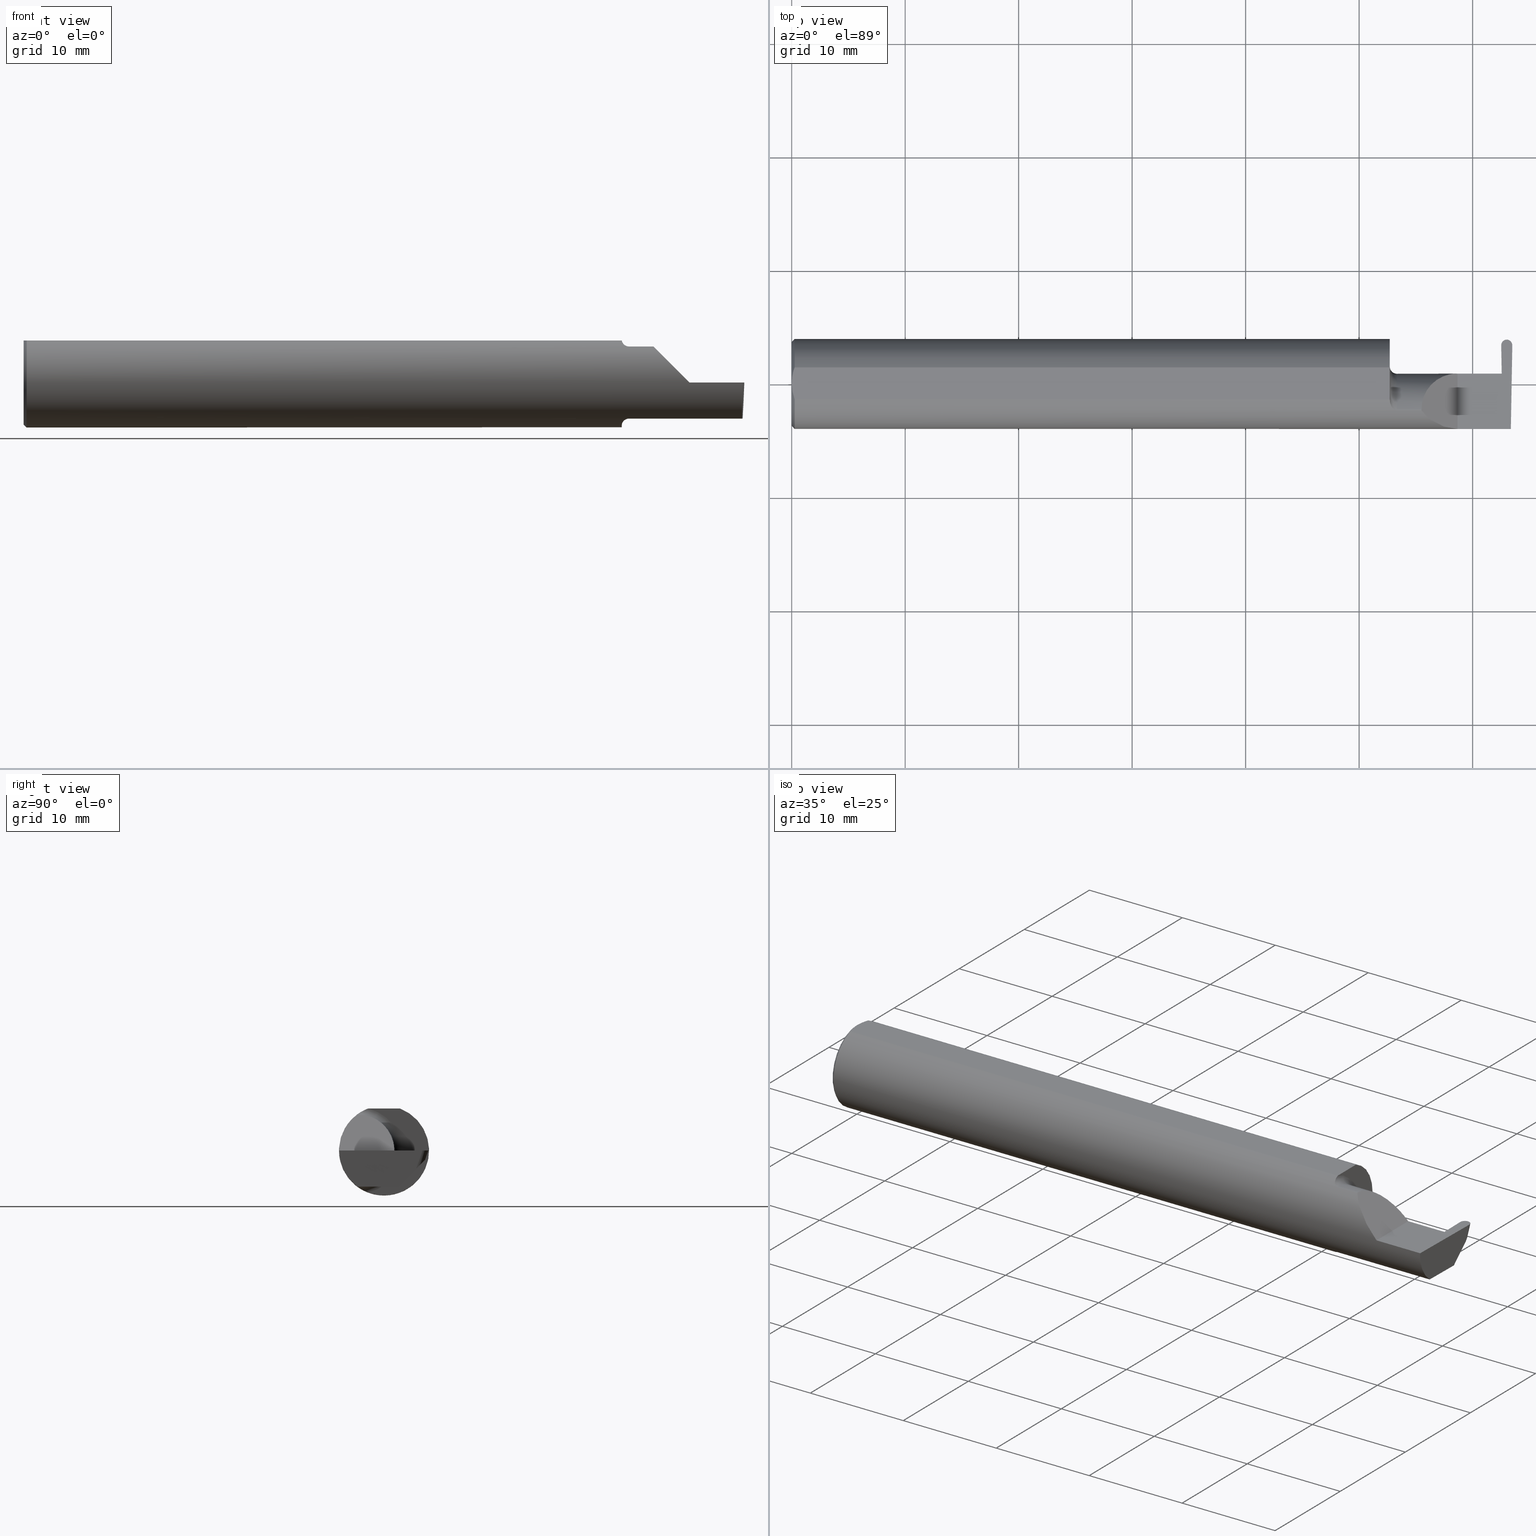
[diagram: canonical four-view strip — front | top / right | iso, engineering-drawing reading convention]
A machine part, canonical four-view strip (front | top / right | iso — engineering-drawing reading convention). The complete STEP part file that produces these views, byte-faithful:
ISO-10303-21;
HEADER;
FILE_DESCRIPTION (( 'STEP AP203' ),
    '1' );
FILE_NAME ('222035-GFR038-6.STEP',
    '2024-06-17T21:57:48',
    ( '' ),
    ( '' ),
    'SwSTEP 2.0',
    'SolidWorks 2022',
    '' );
FILE_SCHEMA (( 'CONFIG_CONTROL_DESIGN' ));
ENDSEC;

DATA;
#1 = CARTESIAN_POINT ( 'NONE',  ( 2.100000000000000089, -0.09360841750841740472, -0.1249186702281520622 ) ) ;
#2 = ADVANCED_FACE ( 'NONE', ( #302 ), #237, .F. ) ;
#3 = CARTESIAN_POINT ( 'NONE',  ( 2.100000000000000089, -0.08910000000000001252, 0.1250000000000000555 ) ) ;
#4 = ORIENTED_EDGE ( 'NONE', *, *, #657, .F. ) ;
#5 = CARTESIAN_POINT ( 'NONE',  ( 2.499981158297549744, 0.1333832200032812054, 0.000000000000000000 ) ) ;
#6 = CARTESIAN_POINT ( 'NONE',  ( 0.000000000000000000, 0.000000000000000000, 0.000000000000000000 ) ) ;
#7 = DIRECTION ( 'NONE',  ( -0.03867711768363010783, -0.3253245514560481610, -0.9448111011136605120 ) ) ;
#8 = VERTEX_POINT ( 'NONE', #731 ) ;
#9 = FACE_OUTER_BOUND ( 'NONE', #354, .T. ) ;
#10 = CARTESIAN_POINT ( 'NONE',  ( 2.480925502065933319, 0.1539000000000000090, 0.000000000000000000 ) ) ;
#11 = DIRECTION ( 'NONE',  ( -0.03549161113179506721, 0.03487750912278139021, 0.9987611851171729338 ) ) ;
#12 = AXIS2_PLACEMENT_3D ( 'NONE', #590, #287, #527 ) ;
#13 = ORIENTED_EDGE ( 'NONE', *, *, #136, .T. ) ;
#14 = VECTOR ( 'NONE', #182, 39.37007874015748854 ) ;
#15 = CARTESIAN_POINT ( 'NONE',  ( 2.480925502065933319, 0.1539000000000000090, 0.000000000000000000 ) ) ;
#16 = CARTESIAN_POINT ( 'NONE',  ( 0.000000000000000000, 0.000000000000000000, 0.1460999999999998689 ) ) ;
#17 = ORIENTED_EDGE ( 'NONE', *, *, #639, .T. ) ;
#18 = PERSON_AND_ORGANIZATION_ROLE ( 'classification_officer' ) ;
#19 = EDGE_CURVE ( 'NONE', #608, #790, #362, .T. ) ;
#20 = CARTESIAN_POINT ( 'NONE',  ( 2.467773870024954963, -0.08937504557419070905, -0.1250000000000000278 ) ) ;
#21 = VERTEX_POINT ( 'NONE', #734 ) ;
#22 = LINE ( 'NONE', #84, #686 ) ;
#23 = ORIENTED_EDGE ( 'NONE', *, *, #232, .T. ) ;
#24 = B_SPLINE_CURVE_WITH_KNOTS ( 'NONE', 3,
 ( #446, #800, #247, #492, #433, #679, #61, #557 ),
 .UNSPECIFIED., .F., .F.,
 ( 4, 2, 2, 4 ),
 ( 2.042507625475088449E-06, 0.0005263182385139183713, 0.0007884561039581399356, 0.001050593969402361608 ),
 .UNSPECIFIED. ) ;
#25 = VECTOR ( 'NONE', #349, 39.37007874015748143 ) ;
#26 = AXIS2_PLACEMENT_3D ( 'NONE', #325, #684, #569 ) ;
#27 = LINE ( 'NONE', #516, #51 ) ;
#28 = EDGE_CURVE ( 'NONE', #614, #244, #140, .T. ) ;
#29 = VERTEX_POINT ( 'NONE', #788 ) ;
#30 = ORIENTED_EDGE ( 'NONE', *, *, #260, .T. ) ;
#31 = CARTESIAN_POINT ( 'NONE',  ( 0.000000000000000000, 0.05497272050753933964, 0.1460999999999998689 ) ) ;
#32 = EDGE_LOOP ( 'NONE', ( #588, #441, #286, #715 ) ) ;
#33 = DIRECTION ( 'NONE',  ( 0.000000000000000000, 0.000000000000000000, 1.000000000000000000 ) ) ;
#34 = EDGE_LOOP ( 'NONE', ( #346, #453, #629, #143, #464 ) ) ;
#35 = DIRECTION ( 'NONE',  ( -1.000000000000000000, -0.000000000000000000, -0.000000000000000000 ) ) ;
#36 = DIRECTION ( 'NONE',  ( 0.000000000000000000, -1.000000000000000000, 0.000000000000000000 ) ) ;
#37 = VECTOR ( 'NONE', #796, 39.37007874015748143 ) ;
#38 = AXIS2_PLACEMENT_3D ( 'NONE', #246, #127, #316 ) ;
#39 = CARTESIAN_POINT ( 'NONE',  ( 2.280730820000000048, -0.09360841750841740472, 0.1249186702281520484 ) ) ;
#40 = FACE_OUTER_BOUND ( 'NONE', #229, .T. ) ;
#41 = ORIENTED_EDGE ( 'NONE', *, *, #254, .T. ) ;
#42 = DIRECTION ( 'NONE',  ( 0.000000000000000000, 0.000000000000000000, -1.000000000000000000 ) ) ;
#43 = CARTESIAN_POINT ( 'NONE',  ( 2.480730819999999781, 0.1492416272951223311, -0.01352889668177391196 ) ) ;
#44 = EDGE_LOOP ( 'NONE', ( #697, #373, #256 ) ) ;
#45 = CARTESIAN_POINT ( 'NONE',  ( 0.000000000000000000, 0.000000000000000000, 0.000000000000000000 ) ) ;
#46 = EDGE_CURVE ( 'NONE', #29, #156, #330, .T. ) ;
#47 = CARTESIAN_POINT ( 'NONE',  ( 2.100000000000000089, -0.08910000000000001252, 0.1499999999999999944 ) ) ;
#48 = ORIENTED_EDGE ( 'NONE', *, *, #291, .T. ) ;
#49 = PRODUCT_DEFINITION ( 'UNKNOWN', '', #216, #660 ) ;
#50 = VECTOR ( 'NONE', #745, 39.37007874015747433 ) ;
#51 = VECTOR ( 'NONE', #281, 39.37007874015748143 ) ;
#52 = LINE ( 'NONE', #669, #703 ) ;
#53 = AXIS2_PLACEMENT_3D ( 'NONE', #626, #756, #204 ) ;
#54 = CARTESIAN_POINT ( 'NONE',  ( 2.310000000000000053, -0.2500000000000000555, 2.326828918379970872E-17 ) ) ;
#55 = EDGE_CURVE ( 'NONE', #427, #171, #424, .T. ) ;
#56 = DIRECTION ( 'NONE',  ( 1.000000000000000000, 0.000000000000000000, 0.000000000000000000 ) ) ;
#57 = CARTESIAN_POINT ( 'NONE',  ( 2.461464574789446136, 0.1342945264389270033, 0.000000000000000000 ) ) ;
#58 = CARTESIAN_POINT ( 'NONE',  ( 2.075000000000000178, 0.000000000000000000, 0.000000000000000000 ) ) ;
#59 = EDGE_CURVE ( 'NONE', #634, #687, #667, .T. ) ;
#60 = DIRECTION ( 'NONE',  ( 1.000000000000000000, 0.000000000000000000, -0.000000000000000000 ) ) ;
#61 = CARTESIAN_POINT ( 'NONE',  ( 2.085319203512566943, -0.08709887368156811471, 0.1295644080582772639 ) ) ;
#62 = EDGE_CURVE ( 'NONE', #567, #608, #366, .T. ) ;
#63 = CARTESIAN_POINT ( 'NONE',  ( 2.455817866257967275, 0.03559550628247790810, -0.008719559218017784372 ) ) ;
#64 = AXIS2_PLACEMENT_3D ( 'NONE', #352, #117, #471 ) ;
#65 = DIRECTION ( 'NONE',  ( -0.03867711768362992047, 0.3253245514560481610, 0.9448111011136606230 ) ) ;
#66 = AXIS2_PLACEMENT_3D ( 'NONE', #709, #33, #275 ) ;
#67 = EDGE_LOOP ( 'NONE', ( #75, #116, #138 ) ) ;
#68 = CARTESIAN_POINT ( 'NONE',  ( 2.080057722617700833, -0.07943655142502258071, -0.1344116409581927463 ) ) ;
#69 = CARTESIAN_POINT ( 'NONE',  ( 2.497431183685123735, 0.1119346375676058408, -0.06229120642041485051 ) ) ;
#70 = DIRECTION ( 'NONE',  ( -0.9992386149554827179, 0.01744177490282277851, 0.03489949670250104552 ) ) ;
#71 = VERTEX_POINT ( 'NONE', #370 ) ;
#72 = CARTESIAN_POINT ( 'NONE',  ( 2.468985697877362551, -2.435358991439782628, -0.07721978725935170484 ) ) ;
#73 = CARTESIAN_POINT ( 'NONE',  ( 2.814752029381861309, 0.1560999999999999888, 0.1460999999999998689 ) ) ;
#74 = CARTESIAN_POINT ( 'NONE',  ( 2.480730819999999781, 0.1431774318487742947, -0.03104841213924604965 ) ) ;
#75 = ORIENTED_EDGE ( 'NONE', *, *, #465, .T. ) ;
#76 = CARTESIAN_POINT ( 'NONE',  ( 2.310000000000000053, -0.1560999999999999888, 2.326828918379970872E-17 ) ) ;
#77 = APPLICATION_CONTEXT ( 'configuration controlled 3d designs of mechanical parts and assemblies' ) ;
#78 = LINE ( 'NONE', #706, #371 ) ;
#79 = ORIENTED_EDGE ( 'NONE', *, *, #675, .T. ) ;
#80 = CIRCLE ( 'NONE', #26, 0.1560999999999999888 ) ;
#81 = APPROVAL_ROLE ( '' ) ;
#82 = EDGE_CURVE ( 'NONE', #608, #118, #470, .T. ) ;
#83 =( BOUNDED_CURVE ( )  B_SPLINE_CURVE ( 3, ( #705, #449, #636, #15 ),
 .UNSPECIFIED., .F., .T. ) 
 B_SPLINE_CURVE_WITH_KNOTS ( ( 4, 4 ),
 ( 1.677524580234104778, 3.253450286950880344 ),
 .UNSPECIFIED. ) 
 CURVE ( )  GEOMETRIC_REPRESENTATION_ITEM ( )  RATIONAL_B_SPLINE_CURVE ( ( 1.000000000000000000, 0.8035272986452582922, 0.8035272986452582922, 1.000000000000000000 ) ) 
 REPRESENTATION_ITEM ( '' )  );
#84 = CARTESIAN_POINT ( 'NONE',  ( 0.000000000000000000, 0.000000000000000000, -0.1460999999999998411 ) ) ;
#85 = ORIENTED_EDGE ( 'NONE', *, *, #409, .T. ) ;
#86 = DIRECTION ( 'NONE',  ( -1.224646799147353947E-16, 0.000000000000000000, -1.000000000000000000 ) ) ;
#87 = VERTEX_POINT ( 'NONE', #375 ) ;
#88 = DATE_TIME_ROLE ( 'creation_date' ) ;
#89 = ADVANCED_FACE ( 'NONE', ( #784 ), #233, .T. ) ;
#90 = CARTESIAN_POINT ( 'NONE',  ( 2.464030456314875384, 0.1119346375676058686, -0.06229120642041481581 ) ) ;
#91 = VERTEX_POINT ( 'NONE', #419 ) ;
#92 = VECTOR ( 'NONE', #670, 39.37007874015748143 ) ;
#93 = CIRCLE ( 'NONE', #546, 0.1560999999999999888 ) ;
#94 = PERSON_AND_ORGANIZATION ( #309, #228 ) ;
#95 = CIRCLE ( 'NONE', #202, 0.1250000000000000555 ) ;
#96 = VERTEX_POINT ( 'NONE', #661 ) ;
#97 = DIRECTION ( 'NONE',  ( -1.000000000000000000, -0.000000000000000000, -0.000000000000000000 ) ) ;
#98 = ORIENTED_EDGE ( 'NONE', *, *, #717, .F. ) ;
#99 = APPROVAL_DATE_TIME ( #523, #306 ) ;
#100 = ORIENTED_EDGE ( 'NONE', *, *, #401, .F. ) ;
#101 = CC_DESIGN_PERSON_AND_ORGANIZATION_ASSIGNMENT ( #225, #18, ( #663 ) ) ;
#102 = CARTESIAN_POINT ( 'NONE',  ( -3.937007874019685528E-05, 0.1539000000000000090, 0.000000000000000000 ) ) ;
#103 = ORIENTED_EDGE ( 'NONE', *, *, #167, .T. ) ;
#104 = CARTESIAN_POINT ( 'NONE',  ( 2.184999999999999165, -0.08910000000000001252, 0.1250000000000000278 ) ) ;
#105 = LINE ( 'NONE', #357, #303 ) ;
#106 = VECTOR ( 'NONE', #484, 39.37007874015747433 ) ;
#107 = EDGE_CURVE ( 'NONE', #334, #132, #105, .T. ) ;
#108 = ORIENTED_EDGE ( 'NONE', *, *, #617, .T. ) ;
#109 = LOCAL_TIME ( 14, 57, 48.00000000000000000, #457 ) ;
#110 = CARTESIAN_POINT ( 'NONE',  ( 2.455919364163807739, 0.03569700418831858735, -0.005813039478678525517 ) ) ;
#111 = ORIENTED_EDGE ( 'NONE', *, *, #491, .F. ) ;
#112 = ORIENTED_EDGE ( 'NONE', *, *, #596, .F. ) ;
#113 = ADVANCED_FACE ( 'NONE', ( #40 ), #297, .T. ) ;
#114 = DIRECTION ( 'NONE',  ( 0.000000000000000000, 0.000000000000000000, -1.000000000000000000 ) ) ;
#115 = DIRECTION ( 'NONE',  ( -0.7071067811865513475, 0.000000000000000000, 0.7071067811865436870 ) ) ;
#116 = ORIENTED_EDGE ( 'NONE', *, *, #205, .F. ) ;
#117 = DIRECTION ( 'NONE',  ( -1.000000000000000000, -0.000000000000000000, -0.000000000000000000 ) ) ;
#118 = VERTEX_POINT ( 'NONE', #74 ) ;
#119 = VERTEX_POINT ( 'NONE', #137 ) ;
#120 = VECTOR ( 'NONE', #753, 39.37007874015748854 ) ;
#121 = DIRECTION ( 'NONE',  ( 1.000000000000000000, 0.000000000000000000, 0.000000000000000000 ) ) ;
#122 = CARTESIAN_POINT ( 'NONE',  ( 2.480730819999999781, 0.1431774318487742947, -0.03104841213924604965 ) ) ;
#123 = CARTESIAN_POINT ( 'NONE',  ( 2.494928209896765114, -0.1560999999999999888, 0.000000000000000000 ) ) ;
#124 = DIRECTION ( 'NONE',  ( -0.03549161113179506721, 0.03487750912278139021, 0.9987611851171729338 ) ) ;
#125 = CARTESIAN_POINT ( 'NONE',  ( 2.499997065210553426, 0.1342945264389270033, 0.000000000000000000 ) ) ;
#126 = CARTESIAN_POINT ( 'NONE',  ( 0.004370115738487063105, 0.03710696786819756010, 0.1460999999999998411 ) ) ;
#127 = DIRECTION ( 'NONE',  ( 0.000000000000000000, -0.7071067811865515695, 0.7071067811865434649 ) ) ;
#128 = LINE ( 'NONE', #436, #791 ) ;
#129 = CARTESIAN_POINT ( 'NONE',  ( 2.493178846255211134, -0.1561000000000000165, -0.05008759057876781273 ) ) ;
#130 = CARTESIAN_POINT ( 'NONE',  ( 2.095361275910303522, -0.09360841750841737696, -0.1249186702281520900 ) ) ;
#131 = DIRECTION ( 'NONE',  ( 0.9992386149554827179, 0.01744177490282218523, 0.03489949670250104552 ) ) ;
#132 = VERTEX_POINT ( 'NONE', #620 ) ;
#133 = CARTESIAN_POINT ( 'NONE',  ( 2.463182057637018030, 0.03590000000000000135, 0.000000000000000000 ) ) ;
#134 =( BOUNDED_CURVE ( )  B_SPLINE_CURVE ( 3, ( #799, #747, #190, #435 ),
 .UNSPECIFIED., .F., .T. ) 
 B_SPLINE_CURVE_WITH_KNOTS ( ( 4, 4 ),
 ( 6.171327673818470139, 7.747253380535275014 ),
 .UNSPECIFIED. ) 
 CURVE ( )  GEOMETRIC_REPRESENTATION_ITEM ( )  RATIONAL_B_SPLINE_CURVE ( ( 1.000000000000000000, 0.8035272986452512978, 0.8035272986452512978, 1.000000000000000000 ) ) 
 REPRESENTATION_ITEM ( '' )  );
#135 = CARTESIAN_POINT ( 'NONE',  ( 2.236776695296636142, 0.03589999999999995972, 0.07322330470336316233 ) ) ;
#136 = EDGE_CURVE ( 'NONE', #795, #776, #430, .T. ) ;
#137 = CARTESIAN_POINT ( 'NONE',  ( 2.087810002172886925, -0.08909999999996048858, -0.1281733201567833991 ) ) ;
#138 = ORIENTED_EDGE ( 'NONE', *, *, #278, .F. ) ;
#139 = CARTESIAN_POINT ( 'NONE',  ( 2.480536137934067575, 0.1539000000000000090, 0.000000000000000000 ) ) ;
#140 =( BOUNDED_CURVE ( )  B_SPLINE_CURVE ( 3, ( #180, #542, #676, #603 ),
 .UNSPECIFIED., .F., .F. ) 
 B_SPLINE_CURVE_WITH_KNOTS ( ( 4, 4 ),
 ( 6.247110142813124156, 6.283185307179586232 ),
 .UNSPECIFIED. ) 
 CURVE ( )  GEOMETRIC_REPRESENTATION_ITEM ( )  RATIONAL_B_SPLINE_CURVE ( ( 1.000000000000000000, 0.9998915514833921492, 0.9998915514833921492, 1.000000000000000000 ) ) 
 REPRESENTATION_ITEM ( '' )  );
#141 = EDGE_CURVE ( 'NONE', #295, #87, #262, .T. ) ;
#142 = CARTESIAN_POINT ( 'NONE',  ( 2.459017824355290038, 0.2076299705802605033, 0.03340412659224087366 ) ) ;
#143 = ORIENTED_EDGE ( 'NONE', *, *, #19, .F. ) ;
#144 = PERSON_AND_ORGANIZATION ( #309, #228 ) ;
#145 = DIRECTION ( 'NONE',  ( -1.000000000000000000, -0.000000000000000000, -0.000000000000000000 ) ) ;
#146 = ORIENTED_EDGE ( 'NONE', *, *, #55, .T. ) ;
#147 = CC_DESIGN_APPROVAL ( #306, ( #49 ) ) ;
#148 = DATE_AND_TIME ( #702, #769 ) ;
#149 = DIRECTION ( 'NONE',  ( -1.000000000000000000, 0.000000000000000000, 1.224646799147353947E-16 ) ) ;
#150 = ORIENTED_EDGE ( 'NONE', *, *, #317, .F. ) ;
#151 = PERSON_AND_ORGANIZATION_ROLE ( 'creator' ) ;
#152 = EDGE_CURVE ( 'NONE', #8, #293, #378, .T. ) ;
#153 = CARTESIAN_POINT ( 'NONE',  ( 2.498348488981012139, 0.1294467622302619136, -0.04477908175775856953 ) ) ;
#154 = EDGE_LOOP ( 'NONE', ( #713, #481, #103, #181, #447 ) ) ;
#155 =( NAMED_UNIT ( * ) PLANE_ANGLE_UNIT ( ) SI_UNIT ( $, .RADIAN. ) );
#156 = VERTEX_POINT ( 'NONE', #3 ) ;
#157 = FACE_OUTER_BOUND ( 'NONE', #529, .T. ) ;
#158 = ORIENTED_EDGE ( 'NONE', *, *, #760, .F. ) ;
#159 = VECTOR ( 'NONE', #479, 39.37007874015748143 ) ;
#160 = PERSON_AND_ORGANIZATION ( #309, #228 ) ;
#161 = CONICAL_SURFACE ( 'NONE', #345, 0.1460999999999998411, 0.7853981633974482790 ) ;
#162 = DIRECTION ( 'NONE',  ( 0.000000000000000000, -0.9455185755993165131, 0.3255681544571574215 ) ) ;
#163 = ORIENTED_EDGE ( 'NONE', *, *, #269, .F. ) ;
#164 = CARTESIAN_POINT ( 'NONE',  ( 2.467687720866161172, -0.01986741890188695875, -0.1250000000000000555 ) ) ;
#165 = UNCERTAINTY_MEASURE_WITH_UNIT (LENGTH_MEASURE( 1.000000000000000082E-05 ), #712, 'distance_accuracy_value', 'NONE');
#166 = DIRECTION ( 'NONE',  ( 0.000000000000000000, 0.000000000000000000, 1.000000000000000000 ) ) ;
#167 = EDGE_CURVE ( 'NONE', #21, #8, #313, .T. ) ;
#168 =( BOUNDED_CURVE ( )  B_SPLINE_CURVE ( 3, ( #76, #807, #689, #197 ),
 .UNSPECIFIED., .F., .T. ) 
 B_SPLINE_CURVE_WITH_KNOTS ( ( 4, 4 ),
 ( 4.712388980384689674, 5.640097190903854418 ),
 .UNSPECIFIED. ) 
 CURVE ( )  GEOMETRIC_REPRESENTATION_ITEM ( )  RATIONAL_B_SPLINE_CURVE ( ( 1.000000000000000000, 0.9295565493311498395, 0.9295565493311498395, 1.000000000000000000 ) ) 
 REPRESENTATION_ITEM ( '' )  );
#169 = ORIENTED_EDGE ( 'NONE', *, *, #460, .F. ) ;
#170 = CARTESIAN_POINT ( 'NONE',  ( 2.184999999999998277, -0.01587669529663690224, 0.1250000000000000555 ) ) ;
#171 = VERTEX_POINT ( 'NONE', #566 ) ;
#172 = AXIS2_PLACEMENT_3D ( 'NONE', #786, #509, #692 ) ;
#173 = VECTOR ( 'NONE', #631, 39.37007874015748143 ) ;
#174 = ORIENTED_EDGE ( 'NONE', *, *, #19, .T. ) ;
#175 = DIRECTION ( 'NONE',  ( -1.000000000000000000, -0.000000000000000000, -0.000000000000000000 ) ) ;
#176 = CARTESIAN_POINT ( 'NONE',  ( 2.476825396828309600, 0.1851121289821666682, 0.09064660450542896819 ) ) ;
#177 = ADVANCED_FACE ( 'NONE', ( #191 ), #326, .F. ) ;
#178 = ORIENTED_EDGE ( 'NONE', *, *, #365, .T. ) ;
#179 = DIRECTION ( 'NONE',  ( -1.000000000000000000, -0.000000000000000000, -0.000000000000000000 ) ) ;
#180 = CARTESIAN_POINT ( 'NONE',  ( 2.185081329771846992, -0.09360841750841733533, 0.1249186702281521039 ) ) ;
#181 = ORIENTED_EDGE ( 'NONE', *, *, #690, .T. ) ;
#182 = DIRECTION ( 'NONE',  ( -0.01745240643727553193, 0.9998476951563912696, -0.000000000000000000 ) ) ;
#183 = AXIS2_PLACEMENT_3D ( 'NONE', #250, #65, #390 ) ;
#184 = VECTOR ( 'NONE', #188, 39.37007874015748854 ) ;
#185 = DIRECTION ( 'NONE',  ( 0.000000000000000000, 0.000000000000000000, 1.000000000000000000 ) ) ;
#186 = VECTOR ( 'NONE', #35, 39.37007874015748143 ) ;
#187 = ADVANCED_FACE ( 'NONE', ( #500 ), #570, .T. ) ;
#188 = DIRECTION ( 'NONE',  ( -0.03701368837992422695, -0.7066222423871549863, -0.7066222423871629799 ) ) ;
#189 = CARTESIAN_POINT ( 'NONE',  ( 2.083312875394042418, -0.08466547365232433842, -0.1311808389156052523 ) ) ;
#190 = CARTESIAN_POINT ( 'NONE',  ( 2.461270922331974642, 0.1453888682971902213, 2.390809088810166648E-18 ) ) ;
#191 = FACE_OUTER_BOUND ( 'NONE', #154, .T. ) ;
#192 = DIRECTION ( 'NONE',  ( 0.9993699743034455407, 0.001238639365660562739, 0.03546999060124569891 ) ) ;
#193 =( BOUNDED_CURVE ( )  B_SPLINE_CURVE ( 3, ( #361, #483, #539, #605 ),
 .UNSPECIFIED., .F., .T. ) 
 B_SPLINE_CURVE_WITH_KNOTS ( ( 4, 4 ),
 ( 0.4273896528388657634, 0.4634648172053296156 ),
 .UNSPECIFIED. ) 
 CURVE ( )  GEOMETRIC_REPRESENTATION_ITEM ( )  RATIONAL_B_SPLINE_CURVE ( ( 1.000000000000000000, 0.9998915514833921492, 0.9998915514833921492, 1.000000000000000000 ) ) 
 REPRESENTATION_ITEM ( '' )  );
#194 = FACE_OUTER_BOUND ( 'NONE', #44, .T. ) ;
#195 = CARTESIAN_POINT ( 'NONE',  ( 2.100000000000000089, -0.08910000000000001252, 0.000000000000000000 ) ) ;
#196 = VERTEX_POINT ( 'NONE', #318 ) ;
#197 = CARTESIAN_POINT ( 'NONE',  ( 2.185081329771846992, -0.09360841750841733533, 0.1249186702281521039 ) ) ;
#198 = EDGE_CURVE ( 'NONE', #156, #295, #532, .T. ) ;
#199 = CARTESIAN_POINT ( 'NONE',  ( 2.310000000000000053, 0.03590000000000000135, 5.204748896376251932E-17 ) ) ;
#200 = AXIS2_PLACEMENT_3D ( 'NONE', #322, #7, #258 ) ;
#201 = CARTESIAN_POINT ( 'NONE',  ( 2.495646440191340965, 0.07786239281539021617, -0.09636345117263085680 ) ) ;
#202 = AXIS2_PLACEMENT_3D ( 'NONE', #746, #680, #434 ) ;
#203 = ORIENTED_EDGE ( 'NONE', *, *, #675, .F. ) ;
#204 = DIRECTION ( 'NONE',  ( 0.000000000000000000, 0.000000000000000000, 1.000000000000000000 ) ) ;
#205 = EDGE_CURVE ( 'NONE', #21, #360, #128, .T. ) ;
#206 = DIRECTION ( 'NONE',  ( 0.03490480639812536257, 0.000000000000000000, -0.9993906415863165194 ) ) ;
#207 = VERTEX_POINT ( 'NONE', #685 ) ;
#208 = VERTEX_POINT ( 'NONE', #264 ) ;
#209 = APPROVAL_STATUS ( 'not_yet_approved' ) ;
#210 = APPROVAL ( #716, 'UNSPECIFIED' ) ;
#211 = VECTOR ( 'NONE', #545, 39.37007874015748854 ) ;
#212 = DIRECTION ( 'NONE',  ( -0.001239419280281361122, 0.9999992319196288060, 0.000000000000000000 ) ) ;
#213 = ADVANCED_FACE ( 'NONE', ( #624 ), #740, .F. ) ;
#214 = CC_DESIGN_APPROVAL ( #245, ( #216 ) ) ;
#215 = ORIENTED_EDGE ( 'NONE', *, *, #198, .T. ) ;
#216 = PRODUCT_DEFINITION_FORMATION_WITH_SPECIFIED_SOURCE ( 'ANY', '', #482, .NOT_KNOWN. ) ;
#217 = APPLICATION_PROTOCOL_DEFINITION ( 'international standard', 'config_control_design', 1994, #77 ) ;
#218 = PRODUCT_RELATED_PRODUCT_CATEGORY ( 'detail', '', ( #482 ) ) ;
#219 = DIRECTION ( 'NONE',  ( 0.000000000000000000, 0.000000000000000000, 1.000000000000000000 ) ) ;
#220 = ORIENTED_EDGE ( 'NONE', *, *, #538, .F. ) ;
#221 = PERSON_AND_ORGANIZATION_ROLE ( 'creator' ) ;
#222 = ADVANCED_FACE ( 'NONE', ( #386 ), #695, .F. ) ;
#223 = CARTESIAN_POINT ( 'NONE',  ( 2.497431183685123735, 0.1119346375676058408, -0.06229120642041485051 ) ) ;
#224 = ORIENTED_EDGE ( 'NONE', *, *, #589, .T. ) ;
#225 = PERSON_AND_ORGANIZATION ( #309, #228 ) ;
#226 = CARTESIAN_POINT ( 'NONE',  ( 2.500000000000000000, -0.2500000000000000555, 0.000000000000000000 ) ) ;
#227 = ORIENTED_EDGE ( 'NONE', *, *, #141, .F. ) ;
#228 = ORGANIZATION ( 'UNSPECIFIED', 'UNSPECIFIED', '' ) ;
#229 = EDGE_LOOP ( 'NONE', ( #363, #350, #224, #711, #394, #595, #655, #693, #300, #672, #13, #486, #458, #203, #583 ) ) ;
#230 = ADVANCED_FACE ( 'NONE', ( #633 ), #553, .T. ) ;
#231 = LINE ( 'NONE', #727, #793 ) ;
#232 = EDGE_CURVE ( 'NONE', #634, #96, #804, .T. ) ;
#233 = CYLINDRICAL_SURFACE ( 'NONE', #519, 0.1250000000000000278 ) ;
#234 = DIRECTION ( 'NONE',  ( 1.000000000000000000, 0.000000000000000000, 0.000000000000000000 ) ) ;
#235 = ORIENTED_EDGE ( 'NONE', *, *, #601, .F. ) ;
#236 = FACE_OUTER_BOUND ( 'NONE', #762, .T. ) ;
#237 = PLANE ( 'NONE',  #410 ) ;
#238 = ORIENTED_EDGE ( 'NONE', *, *, #249, .F. ) ;
#239 = CARTESIAN_POINT ( 'NONE',  ( 2.455817866257967275, 0.03559550628247790810, -0.008719559218017784372 ) ) ;
#240 = ORIENTED_EDGE ( 'NONE', *, *, #401, .T. ) ;
#241 = ORIENTED_EDGE ( 'NONE', *, *, #59, .T. ) ;
#242 = EDGE_CURVE ( 'NONE', #451, #29, #24, .T. ) ;
#243 = PLANE ( 'NONE',  #372 ) ;
#244 = VERTEX_POINT ( 'NONE', #710 ) ;
#245 = APPROVAL ( #408, 'UNSPECIFIED' ) ;
#246 = CARTESIAN_POINT ( 'NONE',  ( -3.937007874019685528E-05, 0.1432258439880203515, -0.03099999999999999978 ) ) ;
#247 = CARTESIAN_POINT ( 'NONE',  ( 2.075844056398636894, -0.06777540567362916324, 0.1407770456887920685 ) ) ;
#248 = FACE_OUTER_BOUND ( 'NONE', #607, .T. ) ;
#249 = EDGE_CURVE ( 'NONE', #118, #634, #554, .T. ) ;
#250 = CARTESIAN_POINT ( 'NONE',  ( 2.476825396828310044, 0.1668636204730998551, 0.09693006988645212763 ) ) ;
#251 = CARTESIAN_POINT ( 'NONE',  ( 2.074999999999997513, -0.06152246774674052093, -0.1436327148497734130 ) ) ;
#252 = CARTESIAN_POINT ( 'NONE',  ( 2.087810002172886925, -0.08909999999996048858, -0.1281733201567833991 ) ) ;
#253 = DIRECTION ( 'NONE',  ( 0.000000000000000000, 0.000000000000000000, -1.000000000000000000 ) ) ;
#254 = EDGE_CURVE ( 'NONE', #305, #87, #78, .T. ) ;
#255 = MANIFOLD_SOLID_BREP ( 'Radii', #610 ) ;
#256 = ORIENTED_EDGE ( 'NONE', *, *, #739, .T. ) ;
#257 = DIRECTION ( 'NONE',  ( 0.000000000000000000, 0.000000000000000000, 1.000000000000000000 ) ) ;
#258 = DIRECTION ( 'NONE',  ( 0.000000000000000000, 0.9455185755993165131, -0.3255681544571574215 ) ) ;
#259 = EDGE_LOOP ( 'NONE', ( #111, #108, #112, #265, #510, #540, #720, #571, #501 ) ) ;
#260 = EDGE_CURVE ( 'NONE', #293, #118, #640, .T. ) ;
#261 = CARTESIAN_POINT ( 'NONE',  ( 2.100000000000000089, -0.08909999999999999865, -0.1499999999999999944 ) ) ;
#262 = CIRCLE ( 'NONE', #382, 0.1250000000000000555 ) ;
#263 = DIRECTION ( 'NONE',  ( 0.000000000000000000, 0.000000000000000000, -1.000000000000000000 ) ) ;
#264 = CARTESIAN_POINT ( 'NONE',  ( 2.100000000000000089, -0.09360841750841740472, 0.1249186702281520622 ) ) ;
#265 = ORIENTED_EDGE ( 'NONE', *, *, #328, .F. ) ;
#266 = LINE ( 'NONE', #630, #575 ) ;
#267 = CARTESIAN_POINT ( 'NONE',  ( 2.087810002172886925, -0.08909999999996048858, -0.1281733201567833991 ) ) ;
#268 = CARTESIAN_POINT ( 'NONE',  ( 2.480730819999999781, 0.1431774318487742947, -0.03104841213924604965 ) ) ;
#269 = EDGE_CURVE ( 'NONE', #71, #795, #22, .T. ) ;
#270 = ORIENTED_EDGE ( 'NONE', *, *, #418, .T. ) ;
#271 = B_SPLINE_CURVE_WITH_KNOTS ( 'NONE', 3,
 ( #383, #555, #379, #126, #621, #314 ),
 .UNSPECIFIED., .F., .F.,
 ( 4, 2, 4 ),
 ( 0.002914391749015463051, 0.003623333355014857204, 0.004332274961014251358 ),
 .UNSPECIFIED. ) ;
#272 = COORDINATED_UNIVERSAL_TIME_OFFSET ( 8, 0, .BEHIND. ) ;
#273 = DIRECTION ( 'NONE',  ( -1.000000000000000000, -0.000000000000000000, -0.000000000000000000 ) ) ;
#274 = ORIENTED_EDGE ( 'NONE', *, *, #416, .T. ) ;
#275 = DIRECTION ( 'NONE',  ( 1.000000000000000000, 0.000000000000000000, 0.000000000000000000 ) ) ;
#276 = PLANE ( 'NONE',  #741 ) ;
#277 = VECTOR ( 'NONE', #124, 39.37007874015748143 ) ;
#278 = EDGE_CURVE ( 'NONE', #766, #21, #582, .T. ) ;
#279 = EDGE_LOOP ( 'NONE', ( #563, #238, #522, #399, #4 ) ) ;
#280 = PERSON_AND_ORGANIZATION ( #309, #228 ) ;
#281 = DIRECTION ( 'NONE',  ( 1.000000000000000000, 7.255572736540064728E-15, -0.000000000000000000 ) ) ;
#282 = VERTEX_POINT ( 'NONE', #645 ) ;
#283 = B_SPLINE_CURVE_WITH_KNOTS ( 'NONE', 3,
 ( #336, #594, #364, #662 ),
 .UNSPECIFIED., .F., .F.,
 ( 4, 4 ),
 ( 0.001050593969402361608, 0.001393966686689393020 ),
 .UNSPECIFIED. ) ;
#284 = ADVANCED_FACE ( 'NONE', ( #344 ), #276, .F. ) ;
#285 = PERSON_AND_ORGANIZATION ( #309, #228 ) ;
#286 = ORIENTED_EDGE ( 'NONE', *, *, #798, .T. ) ;
#287 = DIRECTION ( 'NONE',  ( 7.251152837667978643E-15, -0.9993908270190957621, 0.03489949670250104552 ) ) ;
#288 = ORIENTED_EDGE ( 'NONE', *, *, #531, .T. ) ;
#289 = APPROVAL_DATE_TIME ( #592, #245 ) ;
#290 = EDGE_CURVE ( 'NONE', #469, #776, #761, .T. ) ;
#291 = EDGE_CURVE ( 'NONE', #244, #156, #402, .T. ) ;
#292 = LINE ( 'NONE', #39, #548 ) ;
#293 = VERTEX_POINT ( 'NONE', #771 ) ;
#294 = AXIS2_PLACEMENT_3D ( 'NONE', #125, #70, #310 ) ;
#295 = VERTEX_POINT ( 'NONE', #405 ) ;
#296 = DIRECTION ( 'NONE',  ( 1.000000000000000000, -0.000000000000000000, -0.000000000000000000 ) ) ;
#297 = CYLINDRICAL_SURFACE ( 'NONE', #172, 0.1560999999999999888 ) ;
#298 = CARTESIAN_POINT ( 'NONE',  ( 2.456122359975489111, 0.03589999999999995278, 0.000000000000000000 ) ) ;
#299 = ORIENTED_EDGE ( 'NONE', *, *, #622, .T. ) ;
#300 = ORIENTED_EDGE ( 'NONE', *, *, #107, .F. ) ;
#301 = DIRECTION ( 'NONE',  ( 0.000000000000000000, 1.000000000000000000, 0.000000000000000000 ) ) ;
#302 = FACE_OUTER_BOUND ( 'NONE', #413, .T. ) ;
#303 = VECTOR ( 'NONE', #600, 39.37007874015748143 ) ;
#304 = VECTOR ( 'NONE', #694, 39.37007874015748143 ) ;
#305 = VERTEX_POINT ( 'NONE', #585 ) ;
#306 = APPROVAL ( #209, 'UNSPECIFIED' ) ;
#307 = DIRECTION ( 'NONE',  ( -1.000000000000000000, -0.000000000000000000, -0.000000000000000000 ) ) ;
#308 = CARTESIAN_POINT ( 'NONE',  ( 2.310000000000000053, -0.2500000000000000555, 2.326828918379970872E-17 ) ) ;
#309 = PERSON ( 'UNSPECIFIED', 'UNSPECIFIED', 'UNSPECIFIED', ('UNSPECIFIED'), ('UNSPECIFIED'), ('UNSPECIFIED') ) ;
#310 = DIRECTION ( 'NONE',  ( 0.03490480639812536257, 0.000000000000000000, 0.9993906415863165194 ) ) ;
#311 = DIRECTION ( 'NONE',  ( 1.000000000000000000, 0.000000000000000000, 0.000000000000000000 ) ) ;
#312 = DIRECTION ( 'NONE',  ( 1.000000000000000000, 0.000000000000000000, 0.000000000000000000 ) ) ;
#313 = LINE ( 'NONE', #504, #50 ) ;
#314 = CARTESIAN_POINT ( 'NONE',  ( 0.01000000000000013205, 0.05497272050753933964, 0.1460999999999998689 ) ) ;
#315 = LOCAL_TIME ( 14, 57, 48.00000000000000000, #272 ) ;
#316 = DIRECTION ( 'NONE',  ( 0.000000000000000000, -0.7071067811865433539, -0.7071067811865514585 ) ) ;
#317 = EDGE_CURVE ( 'NONE', #451, #728, #480, .T. ) ;
#318 = CARTESIAN_POINT ( 'NONE',  ( 2.491731938133923130, -0.08909999999999985987, -0.1250000000000000278 ) ) ;
#319 = EDGE_LOOP ( 'NONE', ( #537, #174, #701 ) ) ;
#320 = DIRECTION ( 'NONE',  ( 0.03547001781079411886, 0.000000000000000000, -0.9993707409347654114 ) ) ;
#321 = LINE ( 'NONE', #380, #173 ) ;
#322 = CARTESIAN_POINT ( 'NONE',  ( 2.477214178502805453, 0.1044344632894257108, -0.08437736749050758767 ) ) ;
#323 = EDGE_LOOP ( 'NONE', ( #473, #48, #651, #391 ) ) ;
#324 = CARTESIAN_POINT ( 'NONE',  ( 2.100000000000000089, -0.08910000000000001252, 0.000000000000000000 ) ) ;
#325 = CARTESIAN_POINT ( 'NONE',  ( 0.01000000000000013205, 0.000000000000000000, 0.000000000000000000 ) ) ;
#326 = PLANE ( 'NONE',  #506 ) ;
#327 = ORIENTED_EDGE ( 'NONE', *, *, #141, .T. ) ;
#328 = EDGE_CURVE ( 'NONE', #282, #729, #27, .T. ) ;
#329 = DIRECTION ( 'NONE',  ( 0.000000000000000000, 0.000000000000000000, 1.000000000000000000 ) ) ;
#330 = CIRCLE ( 'NONE', #767, 0.02499999999999993894 ) ;
#331 = CIRCLE ( 'NONE', #805, 0.1460999999999998411 ) ;
#332 = CARTESIAN_POINT ( 'NONE',  ( 0.0009113193687670144904, -0.01867274705588957071, 0.1460999999999998411 ) ) ;
#333 = CIRCLE ( 'NONE', #412, 0.02499999999999993894 ) ;
#334 = VERTEX_POINT ( 'NONE', #524 ) ;
#335 = CALENDAR_DATE ( 2024, 17, 6 ) ;
#336 = CARTESIAN_POINT ( 'NONE',  ( 2.087810002172223012, -0.08909999999984946628, 0.1281733201569305314 ) ) ;
#337 = EDGE_LOOP ( 'NONE', ( #387, #664, #591, #758, #643, #586 ) ) ;
#338 = APPLICATION_PROTOCOL_DEFINITION ( 'international standard', 'config_control_design', 1994, #770 ) ;
#339 = DIMENSIONAL_EXPONENTS ( 1.000000000000000000, 0.000000000000000000, 0.000000000000000000, 0.000000000000000000, 0.000000000000000000, 0.000000000000000000, 0.000000000000000000 ) ;
#340 = EDGE_CURVE ( 'NONE', #728, #469, #93, .T. ) ;
#341 = PRODUCT_DEFINITION_SHAPE ( 'NONE', 'NONE',  #49 ) ;
#342 = DIRECTION ( 'NONE',  ( 0.7071067811865474617, 0.000000000000000000, -0.7071067811865474617 ) ) ;
#343 = ORIENTED_EDGE ( 'NONE', *, *, #249, .T. ) ;
#344 = FACE_OUTER_BOUND ( 'NONE', #259, .T. ) ;
#345 = AXIS2_PLACEMENT_3D ( 'NONE', #6, #312, #385 ) ;
#346 = ORIENTED_EDGE ( 'NONE', *, *, #260, .F. ) ;
#347 = PERSON_AND_ORGANIZATION ( #309, #228 ) ;
#348 = ORIENTED_EDGE ( 'NONE', *, *, #581, .F. ) ;
#349 = DIRECTION ( 'NONE',  ( -1.000000000000000000, -0.000000000000000000, -0.000000000000000000 ) ) ;
#350 = ORIENTED_EDGE ( 'NONE', *, *, #760, .T. ) ;
#351 = ORIENTED_EDGE ( 'NONE', *, *, #696, .F. ) ;
#352 = CARTESIAN_POINT ( 'NONE',  ( 2.075000000000000178, -0.08910000000000001252, 0.000000000000000000 ) ) ;
#353 = EDGE_LOOP ( 'NONE', ( #351, #79, #150, #668, #514, #215 ) ) ;
#354 = EDGE_LOOP ( 'NONE', ( #456, #735, #580, #754, #288, #299, #749, #638 ) ) ;
#355 = LINE ( 'NONE', #541, #455 ) ;
#356 = CC_DESIGN_DATE_AND_TIME_ASSIGNMENT ( #763, #587, ( #663 ) ) ;
#357 = CARTESIAN_POINT ( 'NONE',  ( 0.000000000000000000, -0.05497272050753933964, 0.1460999999999998689 ) ) ;
#358 = AXIS2_PLACEMENT_3D ( 'NONE', #73, #499, #60 ) ;
#359 = ADVANCED_FACE ( 'NONE', ( #157 ), #411, .F. ) ;
#360 = VERTEX_POINT ( 'NONE', #779 ) ;
#361 = CARTESIAN_POINT ( 'NONE',  ( 2.491656083944432165, -0.09360841750841740472, -0.1249186702281520484 ) ) ;
#362 = LINE ( 'NONE', #176, #106 ) ;
#363 = ORIENTED_EDGE ( 'NONE', *, *, #254, .F. ) ;
#364 = CARTESIAN_POINT ( 'NONE',  ( 2.095364775055373219, -0.09360841750841734921, 0.1249186702281521177 ) ) ;
#365 = EDGE_CURVE ( 'NONE', #334, #207, #707, .T. ) ;
#366 = LINE ( 'NONE', #737, #211 ) ;
#367 = ORIENTED_EDGE ( 'NONE', *, *, #690, .F. ) ;
#368 = CARTESIAN_POINT ( 'NONE',  ( -3.937007874019685528E-05, 0.1539000000000000090, 0.000000000000000000 ) ) ;
#369 = ADVANCED_FACE ( 'NONE', ( #513 ), #467, .F. ) ;
#370 = CARTESIAN_POINT ( 'NONE',  ( 0.000000000000000000, 0.000000000000000000, -0.1460999999999998411 ) ) ;
#371 = VECTOR ( 'NONE', #97, 39.37007874015748143 ) ;
#372 = AXIS2_PLACEMENT_3D ( 'NONE', #368, #162, #478 ) ;
#373 = ORIENTED_EDGE ( 'NONE', *, *, #384, .T. ) ;
#374 = CARTESIAN_POINT ( 'NONE',  ( 2.491792233050964533, -0.08564570651617034458, -0.1250000000000000278 ) ) ;
#375 = CARTESIAN_POINT ( 'NONE',  ( 2.100000000000000089, -0.09360841750841740472, -0.1249186702281520622 ) ) ;
#376 = CARTESIAN_POINT ( 'NONE',  ( 2.075000000000000178, -0.08909999999999999865, -0.1250000000000000278 ) ) ;
#377 = FACE_OUTER_BOUND ( 'NONE', #32, .T. ) ;
#378 = LINE ( 'NONE', #142, #120 ) ;
#379 = CARTESIAN_POINT ( 'NONE',  ( 0.0009290501461040111091, 0.01879395969143608097, 0.1460999999999998689 ) ) ;
#380 = CARTESIAN_POINT ( 'NONE',  ( 3.749399456654646757E-32, -0.1560999999999999333, 3.061616997868383634E-16 ) ) ;
#381 = DIRECTION ( 'NONE',  ( -1.000000000000000000, -0.000000000000000000, -0.000000000000000000 ) ) ;
#382 = AXIS2_PLACEMENT_3D ( 'NONE', #195, #748, #757 ) ;
#383 = CARTESIAN_POINT ( 'NONE',  ( 0.000000000000000000, 0.000000000000000000, 0.1460999999999998689 ) ) ;
#384 = EDGE_CURVE ( 'NONE', #29, #208, #283, .T. ) ;
#385 = DIRECTION ( 'NONE',  ( 0.000000000000000000, 0.000000000000000000, -1.000000000000000000 ) ) ;
#386 = FACE_OUTER_BOUND ( 'NONE', #425, .T. ) ;
#387 = ORIENTED_EDGE ( 'NONE', *, *, #596, .T. ) ;
#388 = FACE_OUTER_BOUND ( 'NONE', #67, .T. ) ;
#389 = FACE_OUTER_BOUND ( 'NONE', #462, .T. ) ;
#390 = DIRECTION ( 'NONE',  ( 0.000000000000000000, -0.9455185755993165131, 0.3255681544571574215 ) ) ;
#391 = ORIENTED_EDGE ( 'NONE', *, *, #508, .T. ) ;
#392 = CARTESIAN_POINT ( 'NONE',  ( 2.075847904676645594, -0.06780574120017834883, -0.1407631332654325496 ) ) ;
#393 = CARTESIAN_POINT ( 'NONE',  ( 0.006903212852521220001, -0.04617911398309930415, 0.1460999999999998689 ) ) ;
#394 = ORIENTED_EDGE ( 'NONE', *, *, #508, .F. ) ;
#395 = CALENDAR_DATE ( 2024, 17, 6 ) ;
#396 = AXIS2_PLACEMENT_3D ( 'NONE', #440, #381, #616 ) ;
#397 = VECTOR ( 'NONE', #466, 39.37007874015748143 ) ;
#398 = CARTESIAN_POINT ( 'NONE',  ( -6.292721147515215909E-17, -0.009387766318748835132, 0.1460999999999998689 ) ) ;
#399 = ORIENTED_EDGE ( 'NONE', *, *, #62, .F. ) ;
#400 = EDGE_CURVE ( 'NONE', #597, #282, #674, .T. ) ;
#401 = EDGE_CURVE ( 'NONE', #305, #196, #193, .T. ) ;
#402 = LINE ( 'NONE', #521, #397 ) ;
#403 = ORIENTED_EDGE ( 'NONE', *, *, #717, .T. ) ;
#404 = CALENDAR_DATE ( 2024, 17, 6 ) ;
#405 = CARTESIAN_POINT ( 'NONE',  ( 2.100000000000000089, -0.08909999999999999865, -0.1250000000000000555 ) ) ;
#406 = CC_DESIGN_PERSON_AND_ORGANIZATION_ASSIGNMENT ( #160, #530, ( #482 ) ) ;
#407 = ORIENTED_EDGE ( 'NONE', *, *, #665, .F. ) ;
#408 = APPROVAL_STATUS ( 'not_yet_approved' ) ;
#409 = EDGE_CURVE ( 'NONE', #687, #91, #785, .T. ) ;
#410 = AXIS2_PLACEMENT_3D ( 'NONE', #54, #488, #115 ) ;
#411 = PLANE ( 'NONE',  #12 ) ;
#412 = AXIS2_PLACEMENT_3D ( 'NONE', #261, #751, #329 ) ;
#413 = EDGE_LOOP ( 'NONE', ( #649, #407, #146, #421 ) ) ;
#414 = ORIENTED_EDGE ( 'NONE', *, *, #136, .F. ) ;
#415 = CARTESIAN_POINT ( 'NONE',  ( 0.000000000000000000, 0.000000000000000000, 0.000000000000000000 ) ) ;
#416 = EDGE_CURVE ( 'NONE', #207, #71, #331, .T. ) ;
#417 = ORIENTED_EDGE ( 'NONE', *, *, #365, .F. ) ;
#418 = EDGE_CURVE ( 'NONE', #132, #469, #52, .T. ) ;
#419 = CARTESIAN_POINT ( 'NONE',  ( 2.494928209896765114, -0.1560999999999999888, 0.000000000000000000 ) ) ;
#420 = CYLINDRICAL_SURFACE ( 'NONE', #64, 0.1250000000000000278 ) ;
#421 = ORIENTED_EDGE ( 'NONE', *, *, #531, .F. ) ;
#422 = AXIS2_PLACEMENT_3D ( 'NONE', #627, #56, #561 ) ;
#423 = CARTESIAN_POINT ( 'NONE',  ( 2.456020862069648647, 0.03579850209415926660, -0.002906519739339262758 ) ) ;
#424 = LINE ( 'NONE', #308, #159 ) ;
#425 = EDGE_LOOP ( 'NONE', ( #475, #241, #85, #158, #240, #235 ) ) ;
#426 = CARTESIAN_POINT ( 'NONE',  ( 2.075000000000000178, 0.05497272050753933964, 0.1460999999999998689 ) ) ;
#427 = VERTEX_POINT ( 'NONE', #733 ) ;
#428 = LINE ( 'NONE', #736, #14 ) ;
#429 = CARTESIAN_POINT ( 'NONE',  ( 2.480730819999999781, 0.1462124952691014335, -0.02229539791963374221 ) ) ;
#430 = CIRCLE ( 'NONE', #544, 0.1560999999999999888 ) ;
#431 = FACE_OUTER_BOUND ( 'NONE', #604, .T. ) ;
#432 = VECTOR ( 'NONE', #296, 39.37007874015748143 ) ;
#433 = CARTESIAN_POINT ( 'NONE',  ( 2.080056522840238564, -0.07943464720522717959, 0.1344128205797974207 ) ) ;
#434 = DIRECTION ( 'NONE',  ( 0.000000000000000000, 0.000000000000000000, 1.000000000000000000 ) ) ;
#435 = CARTESIAN_POINT ( 'NONE',  ( 2.461480481702449818, 0.1333832200032812332, 0.000000000000000000 ) ) ;
#436 = CARTESIAN_POINT ( 'NONE',  ( 2.463182057637018030, 0.03590000000000000135, 0.000000000000000000 ) ) ;
#437 = EDGE_CURVE ( 'NONE', #196, #766, #355, .T. ) ;
#438 = CARTESIAN_POINT ( 'NONE',  ( 2.467773529127905707, -0.08910000000000001252, -0.1250000000000000278 ) ) ;
#439 = FACE_OUTER_BOUND ( 'NONE', #658, .T. ) ;
#440 = CARTESIAN_POINT ( 'NONE',  ( 2.100000000000000089, -0.08910000000000001252, 0.000000000000000000 ) ) ;
#441 = ORIENTED_EDGE ( 'NONE', *, *, #418, .F. ) ;
#442 = CARTESIAN_POINT ( 'NONE',  ( 2.461480481702449818, 0.1333832200032812332, 0.000000000000000000 ) ) ;
#443 = VECTOR ( 'NONE', #212, 39.37007874015748854 ) ;
#444 = AXIS2_PLACEMENT_3D ( 'NONE', #324, #498, #257 ) ;
#445 = PLANE ( 'NONE',  #358 ) ;
#446 = CARTESIAN_POINT ( 'NONE',  ( 2.075000000000000178, -0.05502817059483724321, 0.1460791239054557156 ) ) ;
#447 = ORIENTED_EDGE ( 'NONE', *, *, #601, .T. ) ;
#448 = LINE ( 'NONE', #376, #304 ) ;
#449 = CARTESIAN_POINT ( 'NONE',  ( 2.500190717668024920, 0.1453888682971899160, -2.390809088810165492E-18 ) ) ;
#450 = DIRECTION ( 'NONE',  ( 0.000000000000000000, 0.000000000000000000, 1.000000000000000000 ) ) ;
#451 = VERTEX_POINT ( 'NONE', #787 ) ;
#452 = ADVANCED_FACE ( 'NONE', ( #236 ), #420, .T. ) ;
#453 = ORIENTED_EDGE ( 'NONE', *, *, #512, .F. ) ;
#454 = COORDINATED_UNIVERSAL_TIME_OFFSET ( 8, 0, .BEHIND. ) ;
#455 = VECTOR ( 'NONE', #179, 39.37007874015748143 ) ;
#456 = ORIENTED_EDGE ( 'NONE', *, *, #465, .F. ) ;
#457 = COORDINATED_UNIVERSAL_TIME_OFFSET ( 8, 0, .BEHIND. ) ;
#458 = ORIENTED_EDGE ( 'NONE', *, *, #340, .F. ) ;
#459 = APPROVAL_ROLE ( '' ) ;
#460 = EDGE_CURVE ( 'NONE', #71, #207, #768, .T. ) ;
#461 = DIRECTION ( 'NONE',  ( 0.000000000000000000, 0.000000000000000000, -1.000000000000000000 ) ) ;
#462 = EDGE_LOOP ( 'NONE', ( #163, #517, #403, #414 ) ) ;
#463 = CALENDAR_DATE ( 2024, 17, 6 ) ;
#464 = ORIENTED_EDGE ( 'NONE', *, *, #82, .T. ) ;
#465 = EDGE_CURVE ( 'NONE', #766, #360, #723, .T. ) ;
#466 = DIRECTION ( 'NONE',  ( -1.000000000000000000, -0.000000000000000000, -0.000000000000000000 ) ) ;
#467 = TOROIDAL_SURFACE ( 'NONE', #574, 0.1499999999999999944, 0.02499999999999993547 ) ;
#468 = VECTOR ( 'NONE', #552, 39.37007874015748143 ) ;
#469 = VERTEX_POINT ( 'NONE', #426 ) ;
#470 =( BOUNDED_CURVE ( )  B_SPLINE_CURVE ( 3, ( #611, #43, #429, #122 ),
 .UNSPECIFIED., .F., .T. ) 
 B_SPLINE_CURVE_WITH_KNOTS ( ( 4, 4 ),
 ( 1.570796326794916320, 1.626572441210934583 ),
 .UNSPECIFIED. ) 
 CURVE ( )  GEOMETRIC_REPRESENTATION_ITEM ( )  RATIONAL_B_SPLINE_CURVE ( ( 1.000000000000000000, 0.9997407688903218181, 0.9997407688903218181, 1.000000000000000000 ) ) 
 REPRESENTATION_ITEM ( '' )  );
#471 = DIRECTION ( 'NONE',  ( 0.000000000000000000, 0.000000000000000000, 1.000000000000000000 ) ) ;
#472 = CARTESIAN_POINT ( 'NONE',  ( 2.075000000000000178, -0.08910000000000001252, 0.000000000000000000 ) ) ;
#473 = ORIENTED_EDGE ( 'NONE', *, *, #28, .T. ) ;
#474 = LINE ( 'NONE', #656, #186 ) ;
#475 = ORIENTED_EDGE ( 'NONE', *, *, #232, .F. ) ;
#476 = ADVANCED_FACE ( 'NONE', ( #533 ), #243, .F. ) ;
#477 = ORIENTED_EDGE ( 'NONE', *, *, #400, .T. ) ;
#478 = DIRECTION ( 'NONE',  ( 0.000000000000000000, -0.3255681544571574215, -0.9455185755993165131 ) ) ;
#479 = DIRECTION ( 'NONE',  ( -0.000000000000000000, 1.000000000000000000, -0.000000000000000000 ) ) ;
#480 = CIRCLE ( 'NONE', #781, 0.1499999999999999944 ) ;
#481 = ORIENTED_EDGE ( 'NONE', *, *, #278, .T. ) ;
#482 = PRODUCT ( '222035-GFR038-6', '222035-GFR038-6', '', ( #518 ) ) ;
#483 = CARTESIAN_POINT ( 'NONE',  ( 2.491680411974855680, -0.09210618219364763437, -0.1249728871357008164 ) ) ;
#484 = DIRECTION ( 'NONE',  ( -0.03867711768362992047, 0.3253245514560482166, 0.9448111011136606230 ) ) ;
#485 = ADVANCED_FACE ( 'NONE', ( #666 ), #535, .T. ) ;
#486 = ORIENTED_EDGE ( 'NONE', *, *, #290, .F. ) ;
#487 = CARTESIAN_POINT ( 'NONE',  ( 0.000000000000000000, 0.000000000000000000, 0.000000000000000000 ) ) ;
#488 = DIRECTION ( 'NONE',  ( -0.7071067811865436870, 0.000000000000000000, -0.7071067811865513475 ) ) ;
#489 = B_SPLINE_CURVE_WITH_KNOTS ( 'NONE', 3,
 ( #267, #503, #189, #68, #568, #392, #251, #635 ),
 .UNSPECIFIED., .F., .F.,
 ( 4, 2, 2, 4 ),
 ( 0.0003463854958010601989, 0.0006107451645895059728, 0.0008751048333779517466, 0.001403824170954849149 ),
 .UNSPECIFIED. ) ;
#490 = CARTESIAN_POINT ( 'NONE',  ( 2.091077244708473337, -0.09172492714866081753, -0.1263485955677198791 ) ) ;
#491 = EDGE_CURVE ( 'NONE', #790, #567, #722, .T. ) ;
#492 = CARTESIAN_POINT ( 'NONE',  ( 2.078785422859119603, -0.07659497035394384479, 0.1360571150960168396 ) ) ;
#493 = CC_DESIGN_PERSON_AND_ORGANIZATION_ASSIGNMENT ( #144, #221, ( #216 ) ) ;
#494 =( LENGTH_UNIT ( ) NAMED_UNIT ( * ) SI_UNIT ( $, .METRE. ) );
#495 =( GEOMETRIC_REPRESENTATION_CONTEXT ( 3 ) GLOBAL_UNCERTAINTY_ASSIGNED_CONTEXT ( ( #165 ) ) GLOBAL_UNIT_ASSIGNED_CONTEXT ( ( #712, #155, #650 ) ) REPRESENTATION_CONTEXT ( 'NONE', 'WORKASPACE' ) );
#496 = PLANE ( 'NONE',  #422 ) ;
#497 = DIRECTION ( 'NONE',  ( 1.000000000000000000, 0.000000000000000000, 0.000000000000000000 ) ) ;
#498 = DIRECTION ( 'NONE',  ( -1.000000000000000000, -0.000000000000000000, -0.000000000000000000 ) ) ;
#499 = DIRECTION ( 'NONE',  ( 0.000000000000000000, 0.000000000000000000, 1.000000000000000000 ) ) ;
#500 = FACE_OUTER_BOUND ( 'NONE', #34, .T. ) ;
#501 = ORIENTED_EDGE ( 'NONE', *, *, #657, .T. ) ;
#502 = EDGE_CURVE ( 'NONE', #360, #597, #474, .T. ) ;
#503 = CARTESIAN_POINT ( 'NONE',  ( 2.085315048287044171, -0.08709553534231921634, -0.1295667287130569389 ) ) ;
#504 = CARTESIAN_POINT ( 'NONE',  ( 2.469796698367044741, -0.09293822696986775433, -0.1250000000000000278 ) ) ;
#505 = ORIENTED_EDGE ( 'NONE', *, *, #107, .T. ) ;
#506 = AXIS2_PLACEMENT_3D ( 'NONE', #628, #450, #682 ) ;
#507 = CYLINDRICAL_SURFACE ( 'NONE', #53, 0.1250000000000000278 ) ;
#508 = EDGE_CURVE ( 'NONE', #208, #614, #292, .T. ) ;
#509 = DIRECTION ( 'NONE',  ( -1.000000000000000000, -0.000000000000000000, -0.000000000000000000 ) ) ;
#510 = ORIENTED_EDGE ( 'NONE', *, *, #622, .F. ) ;
#511 = CARTESIAN_POINT ( 'NONE',  ( 2.075000000000000178, -0.05502817059483724321, -0.1460791239054557156 ) ) ;
#512 = EDGE_CURVE ( 'NONE', #721, #293, #231, .T. ) ;
#513 = FACE_OUTER_BOUND ( 'NONE', #353, .T. ) ;
#514 = ORIENTED_EDGE ( 'NONE', *, *, #46, .T. ) ;
#515 = COORDINATED_UNIVERSAL_TIME_OFFSET ( 8, 0, .BEHIND. ) ;
#516 = CARTESIAN_POINT ( 'NONE',  ( 2.463182057637018030, 0.03590000000000000135, 0.000000000000000000 ) ) ;
#517 = ORIENTED_EDGE ( 'NONE', *, *, #416, .F. ) ;
#518 = MECHANICAL_CONTEXT ( 'NONE', #770, 'mechanical' ) ;
#519 = AXIS2_PLACEMENT_3D ( 'NONE', #472, #725, #166 ) ;
#520 = CC_DESIGN_APPROVAL ( #210, ( #663 ) ) ;
#521 = CARTESIAN_POINT ( 'NONE',  ( 2.075000000000000178, -0.08910000000000001252, 0.1250000000000000278 ) ) ;
#522 = ORIENTED_EDGE ( 'NONE', *, *, #82, .F. ) ;
#523 = DATE_AND_TIME ( #395, #109 ) ;
#524 = CARTESIAN_POINT ( 'NONE',  ( 0.01000000000000013205, -0.05497272050753933964, 0.1460999999999998689 ) ) ;
#525 = EDGE_LOOP ( 'NONE', ( #505, #270, #797, #98, #417 ) ) ;
#526 = B_SPLINE_CURVE_WITH_KNOTS ( 'NONE', 3,
 ( #1, #130, #490, #252 ),
 .UNSPECIFIED., .F., .F.,
 ( 4, 4 ),
 ( 1.958690481381664333E-07, 0.0003463854958010601989 ),
 .UNSPECIFIED. ) ;
#527 = DIRECTION ( 'NONE',  ( 0.000000000000000000, -0.03489949670250104552, -0.9993908270190957621 ) ) ;
#528 = CC_DESIGN_DATE_AND_TIME_ASSIGNMENT ( #647, #88, ( #49 ) ) ;
#529 = EDGE_LOOP ( 'NONE', ( #220, #773, #477, #732 ) ) ;
#530 = PERSON_AND_ORGANIZATION_ROLE ( 'design_owner' ) ;
#531 = EDGE_CURVE ( 'NONE', #244, #171, #801, .T. ) ;
#532 = CIRCLE ( 'NONE', #396, 0.1250000000000000555 ) ;
#533 = FACE_OUTER_BOUND ( 'NONE', #319, .T. ) ;
#534 = AXIS2_PLACEMENT_3D ( 'NONE', #57, #131, #206 ) ;
#535 = CONICAL_SURFACE ( 'NONE', #688, 0.1460999999999998411, 0.7853981633974482790 ) ;
#536 = CARTESIAN_POINT ( 'NONE',  ( 2.499992648711913734, 0.1334798692399048747, 0.0002806897643215264617 ) ) ;
#537 = ORIENTED_EDGE ( 'NONE', *, *, #62, .T. ) ;
#538 = EDGE_CURVE ( 'NONE', #360, #729, #659, .T. ) ;
#539 = CARTESIAN_POINT ( 'NONE',  ( 2.491705699447075428, -0.09060321336276823401, -0.1250000000000000833 ) ) ;
#540 = ORIENTED_EDGE ( 'NONE', *, *, #55, .F. ) ;
#541 = CARTESIAN_POINT ( 'NONE',  ( 2.689688574201023474, -0.08909999999999985987, -0.1250000000000000278 ) ) ;
#542 = CARTESIAN_POINT ( 'NONE',  ( 2.185027112864298182, -0.09210618219364773152, 0.1249728871357008025 ) ) ;
#543 = CARTESIAN_POINT ( 'NONE',  ( 2.467773529127905707, -0.08910000000000001252, -0.1250000000000000278 ) ) ;
#544 = AXIS2_PLACEMENT_3D ( 'NONE', #562, #497, #253 ) ;
#545 = DIRECTION ( 'NONE',  ( -0.03867711768363010089, -0.3253245514560481610, -0.9448111011136605120 ) ) ;
#546 = AXIS2_PLACEMENT_3D ( 'NONE', #653, #775, #461 ) ;
#547 = ADVANCED_FACE ( 'NONE', ( #377 ), #803, .T. ) ;
#548 = VECTOR ( 'NONE', #783, 39.37007874015748143 ) ;
#549 = ORIENTED_EDGE ( 'NONE', *, *, #269, .T. ) ;
#550 = CARTESIAN_POINT ( 'NONE',  ( 2.463491912695082053, 0.03559550628246012371, -0.008719559218016929153 ) ) ;
#551 = ORIENTED_EDGE ( 'NONE', *, *, #460, .T. ) ;
#552 = DIRECTION ( 'NONE',  ( 1.000000000000000000, 0.000000000000000000, 0.000000000000000000 ) ) ;
#553 = CYLINDRICAL_SURFACE ( 'NONE', #200, 0.01930000000000000118 ) ;
#554 =( BOUNDED_CURVE ( )  B_SPLINE_CURVE ( 3, ( #765, #648, #153, #223 ),
 .UNSPECIFIED., .F., .T. ) 
 B_SPLINE_CURVE_WITH_KNOTS ( ( 4, 4 ),
 ( 3.178506914422260632, 4.698656506723038362 ),
 .UNSPECIFIED. ) 
 CURVE ( )  GEOMETRIC_REPRESENTATION_ITEM ( )  RATIONAL_B_SPLINE_CURVE ( ( 1.000000000000000000, 0.8165229866942693704, 0.8165229866942693704, 1.000000000000000000 ) ) 
 REPRESENTATION_ITEM ( '' )  );
#555 = CARTESIAN_POINT ( 'NONE',  ( -6.265209250606362652E-17, 0.009396510398413125686, 0.1460999999999998689 ) ) ;
#556 = CARTESIAN_POINT ( 'NONE',  ( 2.463182057637018030, 0.03590000000000000135, 0.000000000000000000 ) ) ;
#557 = CARTESIAN_POINT ( 'NONE',  ( 2.087810002172223012, -0.08909999999984946628, 0.1281733201569305314 ) ) ;
#558 = APPROVAL_PERSON_ORGANIZATION ( #584, #245, #81 ) ;
#559 = CARTESIAN_POINT ( 'NONE',  ( 2.491656083944432165, -0.09360841750841740472, -0.1249186702281520484 ) ) ;
#560 = LOCAL_TIME ( 14, 57, 48.00000000000000000, #515 ) ;
#561 = DIRECTION ( 'NONE',  ( 0.000000000000000000, 0.000000000000000000, -1.000000000000000000 ) ) ;
#562 = CARTESIAN_POINT ( 'NONE',  ( 0.01000000000000013205, 0.000000000000000000, 0.000000000000000000 ) ) ;
#563 = ORIENTED_EDGE ( 'NONE', *, *, #59, .F. ) ;
#564 = CARTESIAN_POINT ( 'NONE',  ( 0.01000000000000013205, 0.05497272050753933964, 0.1460999999999998689 ) ) ;
#565 = CARTESIAN_POINT ( 'NONE',  ( 2.075000000000000178, 0.03590000000000000135, 5.204748896376251932E-17 ) ) ;
#566 = CARTESIAN_POINT ( 'NONE',  ( 2.310000000000000053, 0.03590000000000000135, 5.204748896376251932E-17 ) ) ;
#567 = VERTEX_POINT ( 'NONE', #10 ) ;
#568 = CARTESIAN_POINT ( 'NONE',  ( 2.078804698179399946, -0.07664326672408298957, -0.1360300949145557270 ) ) ;
#569 = DIRECTION ( 'NONE',  ( 0.000000000000000000, 0.000000000000000000, -1.000000000000000000 ) ) ;
#570 = CYLINDRICAL_SURFACE ( 'NONE', #183, 0.01930000000000000118 ) ;
#571 = ORIENTED_EDGE ( 'NONE', *, *, #409, .F. ) ;
#572 = ADVANCED_FACE ( 'NONE', ( #389 ), #161, .T. ) ;
#573 = DIRECTION ( 'NONE',  ( 1.000000000000000000, -0.000000000000000000, -0.000000000000000000 ) ) ;
#574 = AXIS2_PLACEMENT_3D ( 'NONE', #700, #145, #642 ) ;
#575 = VECTOR ( 'NONE', #573, 39.37007874015748143 ) ;
#576 = CARTESIAN_POINT ( 'NONE',  ( 2.463113151018988756, 0.1294467622302611365, -0.04477908175775938138 ) ) ;
#577 = ORIENTED_EDGE ( 'NONE', *, *, #437, .F. ) ;
#578 = PERSON_AND_ORGANIZATION_ROLE ( 'design_supplier' ) ;
#579 = CARTESIAN_POINT ( 'NONE',  ( 2.075000000000000178, -0.08910000000000001252, 0.000000000000000000 ) ) ;
#580 = ORIENTED_EDGE ( 'NONE', *, *, #198, .F. ) ;
#581 = EDGE_CURVE ( 'NONE', #334, #795, #80, .T. ) ;
#582 = LINE ( 'NONE', #20, #443 ) ;
#583 = ORIENTED_EDGE ( 'NONE', *, *, #639, .F. ) ;
#584 = PERSON_AND_ORGANIZATION ( #309, #228 ) ;
#585 = CARTESIAN_POINT ( 'NONE',  ( 2.491656083944432165, -0.09360841750841740472, -0.1249186702281520484 ) ) ;
#586 = ORIENTED_EDGE ( 'NONE', *, *, #538, .T. ) ;
#587 = DATE_TIME_ROLE ( 'classification_date' ) ;
#588 = ORIENTED_EDGE ( 'NONE', *, *, #340, .T. ) ;
#589 = EDGE_CURVE ( 'NONE', #91, #427, #321, .T. ) ;
#590 = CARTESIAN_POINT ( 'NONE',  ( 2.463182057637018030, 0.03590000000000000135, 0.000000000000000000 ) ) ;
#591 = ORIENTED_EDGE ( 'NONE', *, *, #152, .F. ) ;
#592 = DATE_AND_TIME ( #335, #677 ) ;
#593 = ORIENTED_EDGE ( 'NONE', *, *, #778, .F. ) ;
#594 = CARTESIAN_POINT ( 'NONE',  ( 2.091072683443918390, -0.09172126259464279119, 0.1263511429915042394 ) ) ;
#595 = ORIENTED_EDGE ( 'NONE', *, *, #384, .F. ) ;
#596 = EDGE_CURVE ( 'NONE', #729, #721, #428, .T. ) ;
#597 = VERTEX_POINT ( 'NONE', #63 ) ;
#598 = DIRECTION ( 'NONE',  ( 0.03867711768362992741, -0.3253245514560482166, -0.9448111011136606230 ) ) ;
#599 = AXIS2_PLACEMENT_3D ( 'NONE', #487, #307, #42 ) ;
#600 = DIRECTION ( 'NONE',  ( 1.000000000000000000, 0.000000000000000000, 0.000000000000000000 ) ) ;
#601 = EDGE_CURVE ( 'NONE', #96, #196, #673, .T. ) ;
#602 = CARTESIAN_POINT ( 'NONE',  ( 2.499997065210553426, 0.1342945264389270033, 0.000000000000000000 ) ) ;
#603 = CARTESIAN_POINT ( 'NONE',  ( 2.184999999999999165, -0.08910000000000001252, 0.1250000000000000278 ) ) ;
#604 = EDGE_LOOP ( 'NONE', ( #17, #646, #327 ) ) ;
#605 = CARTESIAN_POINT ( 'NONE',  ( 2.491731938133923130, -0.08909999999999985987, -0.1250000000000000278 ) ) ;
#606 = ADVANCED_FACE ( 'NONE', ( #691 ), #445, .T. ) ;
#607 = EDGE_LOOP ( 'NONE', ( #274, #551 ) ) ;
#608 = VERTEX_POINT ( 'NONE', #678 ) ;
#609 = DIRECTION ( 'NONE',  ( 0.000000000000000000, 0.000000000000000000, -1.000000000000000000 ) ) ;
#610 = CLOSED_SHELL ( 'NONE', ( #764, #89, #724, #369, #485, #359, #113, #2, #284, #606, #572, #613, #654, #452, #547, #177, #476, #632, #213, #222, #750, #230, #187 ) ) ;
#611 = CARTESIAN_POINT ( 'NONE',  ( 2.480730819999999337, 0.1522624721910675605, -0.004755726075198207087 ) ) ;
#612 = CIRCLE ( 'NONE', #718, 0.1560999999999999888 ) ;
#613 = ADVANCED_FACE ( 'NONE', ( #248 ), #496, .F. ) ;
#614 = VERTEX_POINT ( 'NONE', #744 ) ;
#615 = DIRECTION ( 'NONE',  ( -0.01745240643727612520, -0.9998476951563912696, 0.000000000000000000 ) ) ;
#616 = DIRECTION ( 'NONE',  ( 0.000000000000000000, 0.000000000000000000, 1.000000000000000000 ) ) ;
#617 = EDGE_CURVE ( 'NONE', #790, #721, #134, .T. ) ;
#618 = CARTESIAN_POINT ( 'NONE',  ( 0.01000000000000013205, 0.000000000000000000, -0.1560999999999999888 ) ) ;
#619 = CARTESIAN_POINT ( 'NONE',  ( 2.075000000000000178, 0.1560999999999999055, 0.000000000000000000 ) ) ;
#620 = CARTESIAN_POINT ( 'NONE',  ( 2.075000000000000178, -0.05497272050753934658, 0.1460999999999998689 ) ) ;
#621 = CARTESIAN_POINT ( 'NONE',  ( 0.006876379561362894709, 0.04610291843171884091, 0.1460999999999998689 ) ) ;
#622 = EDGE_CURVE ( 'NONE', #171, #282, #681, .T. ) ;
#623 = PLANE ( 'NONE',  #38 ) ;
#624 = FACE_OUTER_BOUND ( 'NONE', #337, .T. ) ;
#625 = APPROVAL_PERSON_ORGANIZATION ( #285, #210, #459 ) ;
#626 = CARTESIAN_POINT ( 'NONE',  ( 2.075000000000000178, -0.08910000000000001252, 0.000000000000000000 ) ) ;
#627 = CARTESIAN_POINT ( 'NONE',  ( 0.000000000000000000, 0.000000000000000000, 0.000000000000000000 ) ) ;
#628 = CARTESIAN_POINT ( 'NONE',  ( 2.689688574201023474, -0.08909999999999985987, -0.1250000000000000278 ) ) ;
#629 = ORIENTED_EDGE ( 'NONE', *, *, #617, .F. ) ;
#630 = CARTESIAN_POINT ( 'NONE',  ( -3.937007874019685528E-05, 0.04922584398802136441, -0.1250000000000000278 ) ) ;
#631 = DIRECTION ( 'NONE',  ( -1.000000000000000000, -0.000000000000000000, -0.000000000000000000 ) ) ;
#632 = ADVANCED_FACE ( 'NONE', ( #439 ), #623, .F. ) ;
#633 = FACE_OUTER_BOUND ( 'NONE', #279, .T. ) ;
#634 = VERTEX_POINT ( 'NONE', #69 ) ;
#635 = CARTESIAN_POINT ( 'NONE',  ( 2.075000000000000178, -0.05502817059483724321, -0.1460791239054557156 ) ) ;
#636 = CARTESIAN_POINT ( 'NONE',  ( 2.492285715036194116, 0.1538999999999999257, -1.422725471777829947E-18 ) ) ;
#637 = CARTESIAN_POINT ( 'NONE',  ( 0.004356241145161886263, -0.03705973501792376307, 0.1460999999999998689 ) ) ;
#638 = ORIENTED_EDGE ( 'NONE', *, *, #502, .F. ) ;
#639 = EDGE_CURVE ( 'NONE', #87, #119, #526, .T. ) ;
#640 =( BOUNDED_CURVE ( )  B_SPLINE_CURVE ( 3, ( #90, #576, #714, #268 ),
 .UNSPECIFIED., .F., .T. ) 
 B_SPLINE_CURVE_WITH_KNOTS ( ( 4, 4 ),
 ( 4.726121454046340986, 6.246271046347061429 ),
 .UNSPECIFIED. ) 
 CURVE ( )  GEOMETRIC_REPRESENTATION_ITEM ( )  RATIONAL_B_SPLINE_CURVE ( ( 1.000000000000000000, 0.8165229866942824710, 0.8165229866942824710, 1.000000000000000000 ) ) 
 REPRESENTATION_ITEM ( '' )  );
#641 = AXIS2_PLACEMENT_3D ( 'NONE', #619, #121, #263 ) ;
#642 = DIRECTION ( 'NONE',  ( 0.000000000000000000, 0.000000000000000000, 1.000000000000000000 ) ) ;
#643 = ORIENTED_EDGE ( 'NONE', *, *, #205, .T. ) ;
#644 = LENGTH_MEASURE_WITH_UNIT ( LENGTH_MEASURE( 0.02539999999999999897 ), #494 );
#645 = CARTESIAN_POINT ( 'NONE',  ( 2.456122359975489111, 0.03589999999999995278, 0.000000000000000000 ) ) ;
#646 = ORIENTED_EDGE ( 'NONE', *, *, #696, .T. ) ;
#647 = DATE_AND_TIME ( #404, #560 ) ;
#648 = CARTESIAN_POINT ( 'NONE',  ( 2.491530814542256334, 0.1422011671032368807, -0.03202467688478343594 ) ) ;
#649 = ORIENTED_EDGE ( 'NONE', *, *, #28, .F. ) ;
#650 =( NAMED_UNIT ( * ) SI_UNIT ( $, .STERADIAN. ) SOLID_ANGLE_UNIT ( ) );
#651 = ORIENTED_EDGE ( 'NONE', *, *, #739, .F. ) ;
#652 = AXIS2_PLACEMENT_3D ( 'NONE', #72, #192, #320 ) ;
#653 = CARTESIAN_POINT ( 'NONE',  ( 2.075000000000000178, 0.000000000000000000, 0.000000000000000000 ) ) ;
#654 = ADVANCED_FACE ( 'NONE', ( #194 ), #704, .F. ) ;
#655 = ORIENTED_EDGE ( 'NONE', *, *, #242, .F. ) ;
#656 = CARTESIAN_POINT ( 'NONE',  ( 2.074999999999999289, 0.03559550628247239168, -0.008719559218096552961 ) ) ;
#657 = EDGE_CURVE ( 'NONE', #687, #567, #83, .T. ) ;
#658 = EDGE_LOOP ( 'NONE', ( #780, #30, #343, #23, #367 ) ) ;
#659 = LINE ( 'NONE', #556, #277 ) ;
#660 = DESIGN_CONTEXT ( 'detailed design', #77, 'design' ) ;
#661 = CARTESIAN_POINT ( 'NONE',  ( 2.494146424721983557, 0.04922584398802135747, -0.1250000000000000278 ) ) ;
#662 = CARTESIAN_POINT ( 'NONE',  ( 2.100000000000000089, -0.09360841750841740472, 0.1249186702281520622 ) ) ;
#663 = SECURITY_CLASSIFICATION ( '', '', #774 ) ;
#664 = ORIENTED_EDGE ( 'NONE', *, *, #512, .T. ) ;
#665 = EDGE_CURVE ( 'NONE', #427, #614, #168, .T. ) ;
#666 = FACE_OUTER_BOUND ( 'NONE', #708, .T. ) ;
#667 = LINE ( 'NONE', #536, #92 ) ;
#668 = ORIENTED_EDGE ( 'NONE', *, *, #242, .T. ) ;
#669 = CARTESIAN_POINT ( 'NONE',  ( 2.075000000000000178, 0.1560999999999999888, 0.1460999999999998689 ) ) ;
#670 = DIRECTION ( 'NONE',  ( 0.03867711768363010783, 0.3253245514560481610, 0.9448111011136606230 ) ) ;
#671 = APPROVAL_DATE_TIME ( #148, #210 ) ;
#672 = ORIENTED_EDGE ( 'NONE', *, *, #581, .T. ) ;
#673 = LINE ( 'NONE', #374, #755 ) ;
#674 = B_SPLINE_CURVE_WITH_KNOTS ( 'NONE', 3,
 ( #239, #110, #423, #298 ),
 .UNSPECIFIED., .F., .F.,
 ( 4, 4 ),
 ( 0.000000000000000000, 1.000000000000000000 ),
 .UNSPECIFIED. ) ;
#675 = EDGE_CURVE ( 'NONE', #119, #728, #489, .T. ) ;
#676 = CARTESIAN_POINT ( 'NONE',  ( 2.184999999999999165, -0.09060321336276835891, 0.1250000000000000555 ) ) ;
#677 = LOCAL_TIME ( 14, 57, 48.00000000000000000, #777 ) ;
#678 = CARTESIAN_POINT ( 'NONE',  ( 2.480730819999999337, 0.1522624721910675605, -0.004755726075198207087 ) ) ;
#679 = CARTESIAN_POINT ( 'NONE',  ( 2.083314215045239948, -0.08466760255782139477, 0.1311795204669788661 ) ) ;
#680 = DIRECTION ( 'NONE',  ( -1.000000000000000000, -0.000000000000000000, -0.000000000000000000 ) ) ;
#681 = LINE ( 'NONE', #565, #468 ) ;
#682 = DIRECTION ( 'NONE',  ( 1.000000000000000000, 0.000000000000000000, -0.000000000000000000 ) ) ;
#683 = CARTESIAN_POINT ( 'NONE',  ( 2.492005481760536156, -0.1336908980339254205, -0.09488266708345013956 ) ) ;
#684 = DIRECTION ( 'NONE',  ( 1.000000000000000000, 0.000000000000000000, 0.000000000000000000 ) ) ;
#685 = CARTESIAN_POINT ( 'NONE',  ( 0.000000000000000000, 0.000000000000000000, 0.1460999999999998689 ) ) ;
#686 = VECTOR ( 'NONE', #342, 39.37007874015748854 ) ;
#687 = VERTEX_POINT ( 'NONE', #5 ) ;
#688 = AXIS2_PLACEMENT_3D ( 'NONE', #415, #234, #114 ) ;
#689 = CARTESIAN_POINT ( 'NONE',  ( 2.215117332916549220, -0.1336908980339253650, 0.09488266708345012568 ) ) ;
#690 = EDGE_CURVE ( 'NONE', #8, #96, #266, .T. ) ;
#691 = FACE_OUTER_BOUND ( 'NONE', #525, .T. ) ;
#692 = DIRECTION ( 'NONE',  ( 0.000000000000000000, 0.000000000000000000, 1.000000000000000000 ) ) ;
#693 = ORIENTED_EDGE ( 'NONE', *, *, #798, .F. ) ;
#694 = DIRECTION ( 'NONE',  ( -1.000000000000000000, -0.000000000000000000, -0.000000000000000000 ) ) ;
#695 = PLANE ( 'NONE',  #294 ) ;
#696 = EDGE_CURVE ( 'NONE', #119, #295, #333, .T. ) ;
#697 = ORIENTED_EDGE ( 'NONE', *, *, #46, .F. ) ;
#698 = APPROVAL_ROLE ( '' ) ;
#699 = CC_DESIGN_PERSON_AND_ORGANIZATION_ASSIGNMENT ( #347, #151, ( #49 ) ) ;
#700 = CARTESIAN_POINT ( 'NONE',  ( 2.100000000000000089, -0.08910000000000001252, 0.000000000000000000 ) ) ;
#701 = ORIENTED_EDGE ( 'NONE', *, *, #491, .T. ) ;
#702 = CALENDAR_DATE ( 2024, 17, 6 ) ;
#703 = VECTOR ( 'NONE', #301, 39.37007874015748143 ) ;
#704 = TOROIDAL_SURFACE ( 'NONE', #806, 0.1499999999999999944, 0.02499999999999993547 ) ;
#705 = CARTESIAN_POINT ( 'NONE',  ( 2.499981158297549744, 0.1333832200032812054, 0.000000000000000000 ) ) ;
#706 = CARTESIAN_POINT ( 'NONE',  ( 2.280730820000000048, -0.09360841750841740472, -0.1249186702281520484 ) ) ;
#707 = B_SPLINE_CURVE_WITH_KNOTS ( 'NONE', 3,
 ( #719, #393, #637, #332, #398, #16 ),
 .UNSPECIFIED., .F., .F.,
 ( 4, 2, 4 ),
 ( 0.001497827971916939694, 0.002206109860466201264, 0.002914391749015463051 ),
 .UNSPECIFIED. ) ;
#708 = EDGE_LOOP ( 'NONE', ( #169, #549, #348, #178 ) ) ;
#709 = CARTESIAN_POINT ( 'NONE',  ( 0.000000000000000000, 0.000000000000000000, 0.000000000000000000 ) ) ;
#710 = CARTESIAN_POINT ( 'NONE',  ( 2.184999999999999165, -0.08910000000000001252, 0.1250000000000000278 ) ) ;
#711 = ORIENTED_EDGE ( 'NONE', *, *, #665, .T. ) ;
#712 =( CONVERSION_BASED_UNIT ( 'INCH', #644 ) LENGTH_UNIT ( ) NAMED_UNIT ( #339 ) );
#713 = ORIENTED_EDGE ( 'NONE', *, *, #437, .T. ) ;
#714 = CARTESIAN_POINT ( 'NONE',  ( 2.469930825457742785, 0.1422011671032358537, -0.03202467688478448371 ) ) ;
#715 = ORIENTED_EDGE ( 'NONE', *, *, #317, .T. ) ;
#716 = APPROVAL_STATUS ( 'not_yet_approved' ) ;
#717 = EDGE_CURVE ( 'NONE', #207, #776, #271, .T. ) ;
#718 = AXIS2_PLACEMENT_3D ( 'NONE', #58, #311, #802 ) ;
#719 = CARTESIAN_POINT ( 'NONE',  ( 0.01000000000000013205, -0.05497272050753933964, 0.1460999999999998689 ) ) ;
#720 = ORIENTED_EDGE ( 'NONE', *, *, #589, .F. ) ;
#721 = VERTEX_POINT ( 'NONE', #442 ) ;
#722 = LINE ( 'NONE', #102, #432 ) ;
#723 =( BOUNDED_CURVE ( )  B_SPLINE_CURVE ( 3, ( #543, #164, #792, #550 ),
 .UNSPECIFIED., .F., .T. ) 
 B_SPLINE_CURVE_WITH_KNOTS ( ( 4, 4 ),
 ( 3.176499238629679756, 4.677482395344783050 ),
 .UNSPECIFIED. ) 
 CURVE ( )  GEOMETRIC_REPRESENTATION_ITEM ( )  RATIONAL_B_SPLINE_CURVE ( ( 1.000000000000000000, 0.8209024677461181918, 0.8209024677461181918, 1.000000000000000000 ) ) 
 REPRESENTATION_ITEM ( '' )  );
#724 = ADVANCED_FACE ( 'NONE', ( #431 ), #742, .F. ) ;
#725 = DIRECTION ( 'NONE',  ( -1.000000000000000000, -0.000000000000000000, -0.000000000000000000 ) ) ;
#726 = CC_DESIGN_PERSON_AND_ORGANIZATION_ASSIGNMENT ( #280, #578, ( #216 ) ) ;
#727 = CARTESIAN_POINT ( 'NONE',  ( 2.461468991288086272, 0.1334798692399049025, 0.0002806897643215190891 ) ) ;
#728 = VERTEX_POINT ( 'NONE', #511 ) ;
#729 = VERTEX_POINT ( 'NONE', #133 ) ;
#730 = CC_DESIGN_SECURITY_CLASSIFICATION ( #663, ( #216 ) ) ;
#731 = CARTESIAN_POINT ( 'NONE',  ( 2.467315215278015561, 0.04922584398802139216, -0.1250000000000000000 ) ) ;
#732 = ORIENTED_EDGE ( 'NONE', *, *, #328, .T. ) ;
#733 = CARTESIAN_POINT ( 'NONE',  ( 2.310000000000000053, -0.1560999999999999888, 2.326828918379970872E-17 ) ) ;
#734 = CARTESIAN_POINT ( 'NONE',  ( 2.467624011787402871, 0.03153490381351367611, -0.1249999999999994033 ) ) ;
#735 = ORIENTED_EDGE ( 'NONE', *, *, #778, .T. ) ;
#736 = CARTESIAN_POINT ( 'NONE',  ( 2.461464574789446136, 0.1342945264389270033, 0.000000000000000000 ) ) ;
#737 = CARTESIAN_POINT ( 'NONE',  ( 2.477214178502805009, 0.1226829717984925100, -0.09066083287153071935 ) ) ;
#738 = DIRECTION ( 'NONE',  ( -1.000000000000000000, -0.000000000000000000, -0.000000000000000000 ) ) ;
#739 = EDGE_CURVE ( 'NONE', #208, #156, #95, .T. ) ;
#740 = PLANE ( 'NONE',  #534 ) ;
#741 = AXIS2_PLACEMENT_3D ( 'NONE', #226, #86, #149 ) ;
#742 = TOROIDAL_SURFACE ( 'NONE', #444, 0.1499999999999999944, 0.02499999999999993547 ) ;
#743 = ADVANCED_BREP_SHAPE_REPRESENTATION ( '222035-GFR038-6', ( #255, #66 ), #495 ) ;
#744 = CARTESIAN_POINT ( 'NONE',  ( 2.185081329771846992, -0.09360841750841733533, 0.1249186702281521039 ) ) ;
#745 = DIRECTION ( 'NONE',  ( -0.01745240643727553886, 0.9998476951563914916, 0.000000000000000000 ) ) ;
#746 = CARTESIAN_POINT ( 'NONE',  ( 2.100000000000000089, -0.08910000000000001252, 0.000000000000000000 ) ) ;
#747 = CARTESIAN_POINT ( 'NONE',  ( 2.469175924963806334, 0.1539000000000003143, 1.422725471777793932E-18 ) ) ;
#748 = DIRECTION ( 'NONE',  ( -1.000000000000000000, -0.000000000000000000, -0.000000000000000000 ) ) ;
#749 = ORIENTED_EDGE ( 'NONE', *, *, #400, .F. ) ;
#750 = ADVANCED_FACE ( 'NONE', ( #388 ), #759, .F. ) ;
#751 = DIRECTION ( 'NONE',  ( -0.000000000000000000, 1.000000000000000000, 1.224646799147353207E-16 ) ) ;
#752 = CARTESIAN_POINT ( 'NONE',  ( 2.100000000000000089, -0.08910000000000001252, 0.000000000000000000 ) ) ;
#753 = DIRECTION ( 'NONE',  ( -0.03701368837992380367, 0.7066222423871549863, 0.7066222423871629799 ) ) ;
#754 = ORIENTED_EDGE ( 'NONE', *, *, #291, .F. ) ;
#755 = VECTOR ( 'NONE', #615, 39.37007874015748854 ) ;
#756 = DIRECTION ( 'NONE',  ( -1.000000000000000000, -0.000000000000000000, -0.000000000000000000 ) ) ;
#757 = DIRECTION ( 'NONE',  ( 0.000000000000000000, 0.000000000000000000, 1.000000000000000000 ) ) ;
#758 = ORIENTED_EDGE ( 'NONE', *, *, #167, .F. ) ;
#759 = PLANE ( 'NONE',  #652 ) ;
#760 = EDGE_CURVE ( 'NONE', #305, #91, #772, .T. ) ;
#761 = LINE ( 'NONE', #31, #25 ) ;
#762 = EDGE_LOOP ( 'NONE', ( #593, #577, #100, #41, #227 ) ) ;
#763 = DATE_AND_TIME ( #463, #315 ) ;
#764 = ADVANCED_FACE ( 'NONE', ( #9 ), #507, .T. ) ;
#765 = CARTESIAN_POINT ( 'NONE',  ( 2.480730819999999781, 0.1431774318487742947, -0.03104841213924604965 ) ) ;
#766 = VERTEX_POINT ( 'NONE', #438 ) ;
#767 = AXIS2_PLACEMENT_3D ( 'NONE', #47, #36, #794 ) ;
#768 = CIRCLE ( 'NONE', #599, 0.1460999999999998411 ) ;
#769 = LOCAL_TIME ( 14, 57, 48.00000000000000000, #454 ) ;
#770 = APPLICATION_CONTEXT ( 'configuration controlled 3d designs of mechanical parts and assemblies' ) ;
#771 = CARTESIAN_POINT ( 'NONE',  ( 2.464030456314875384, 0.1119346375676058686, -0.06229120642041481581 ) ) ;
#772 =( BOUNDED_CURVE ( )  B_SPLINE_CURVE ( 3, ( #559, #683, #129, #123 ),
 .UNSPECIFIED., .F., .T. ) 
 B_SPLINE_CURVE_WITH_KNOTS ( ( 4, 4 ),
 ( 0.1796232990704038912, 1.107331509589568608 ),
 .UNSPECIFIED. ) 
 CURVE ( )  GEOMETRIC_REPRESENTATION_ITEM ( )  RATIONAL_B_SPLINE_CURVE ( ( 1.000000000000000000, 0.9295565493311498395, 0.9295565493311498395, 1.000000000000000000 ) ) 
 REPRESENTATION_ITEM ( '' )  );
#773 = ORIENTED_EDGE ( 'NONE', *, *, #502, .T. ) ;
#774 = SECURITY_CLASSIFICATION_LEVEL ( 'unclassified' ) ;
#775 = DIRECTION ( 'NONE',  ( 1.000000000000000000, 0.000000000000000000, 0.000000000000000000 ) ) ;
#776 = VERTEX_POINT ( 'NONE', #564 ) ;
#777 = COORDINATED_UNIVERSAL_TIME_OFFSET ( 8, 0, .BEHIND. ) ;
#778 = EDGE_CURVE ( 'NONE', #766, #295, #448, .T. ) ;
#779 = CARTESIAN_POINT ( 'NONE',  ( 2.463491912695082053, 0.03559550628246012371, -0.008719559218016929153 ) ) ;
#780 = ORIENTED_EDGE ( 'NONE', *, *, #152, .T. ) ;
#781 = AXIS2_PLACEMENT_3D ( 'NONE', #579, #273, #219 ) ;
#782 = APPROVAL_PERSON_ORGANIZATION ( #94, #306, #698 ) ;
#783 = DIRECTION ( 'NONE',  ( 1.000000000000000000, 0.000000000000000000, 0.000000000000000000 ) ) ;
#784 = FACE_OUTER_BOUND ( 'NONE', #323, .T. ) ;
#785 = LINE ( 'NONE', #602, #37 ) ;
#786 = CARTESIAN_POINT ( 'NONE',  ( 0.000000000000000000, 0.000000000000000000, 0.000000000000000000 ) ) ;
#787 = CARTESIAN_POINT ( 'NONE',  ( 2.075000000000000178, -0.05502817059483724321, 0.1460791239054557156 ) ) ;
#788 = CARTESIAN_POINT ( 'NONE',  ( 2.087810002172223012, -0.08909999999984946628, 0.1281733201569305314 ) ) ;
#789 = SHAPE_DEFINITION_REPRESENTATION ( #341, #743 ) ;
#790 = VERTEX_POINT ( 'NONE', #139 ) ;
#791 = VECTOR ( 'NONE', #11, 39.37007874015748143 ) ;
#792 = CARTESIAN_POINT ( 'NONE',  ( 2.465949139812158020, 0.03076608555686791147, -0.07778349322819352873 ) ) ;
#793 = VECTOR ( 'NONE', #598, 39.37007874015747433 ) ;
#794 = DIRECTION ( 'NONE',  ( 0.000000000000000000, 0.000000000000000000, -1.000000000000000000 ) ) ;
#795 = VERTEX_POINT ( 'NONE', #618 ) ;
#796 = DIRECTION ( 'NONE',  ( -0.01745240643727612520, -0.9998476951563912696, 0.000000000000000000 ) ) ;
#797 = ORIENTED_EDGE ( 'NONE', *, *, #290, .T. ) ;
#798 = EDGE_CURVE ( 'NONE', #132, #451, #612, .T. ) ;
#799 = CARTESIAN_POINT ( 'NONE',  ( 2.480536137934067575, 0.1539000000000000090, 0.000000000000000000 ) ) ;
#800 = CARTESIAN_POINT ( 'NONE',  ( 2.074999999999999734, -0.06156212810510099109, 0.1436177747480845146 ) ) ;
#801 =( BOUNDED_CURVE ( )  B_SPLINE_CURVE ( 3, ( #104, #170, #135, #199 ),
 .UNSPECIFIED., .F., .F. ) 
 B_SPLINE_CURVE_WITH_KNOTS ( ( 4, 4 ),
 ( 0.000000000000000000, 1.570796326794896336 ),
 .UNSPECIFIED. ) 
 CURVE ( )  GEOMETRIC_REPRESENTATION_ITEM ( )  RATIONAL_B_SPLINE_CURVE ( ( 1.000000000000000000, 0.8047378541243650485, 0.8047378541243650485, 1.000000000000000000 ) ) 
 REPRESENTATION_ITEM ( '' )  );
#802 = DIRECTION ( 'NONE',  ( 0.000000000000000000, 0.000000000000000000, -1.000000000000000000 ) ) ;
#803 = PLANE ( 'NONE',  #641 ) ;
#804 = LINE ( 'NONE', #201, #184 ) ;
#805 = AXIS2_PLACEMENT_3D ( 'NONE', #45, #175, #609 ) ;
#806 = AXIS2_PLACEMENT_3D ( 'NONE', #752, #738, #185 ) ;
#807 = CARTESIAN_POINT ( 'NONE',  ( 2.259912409421231949, -0.1560999999999999333, 0.05008759057876778498 ) ) ;
ENDSEC;
END-ISO-10303-21;
